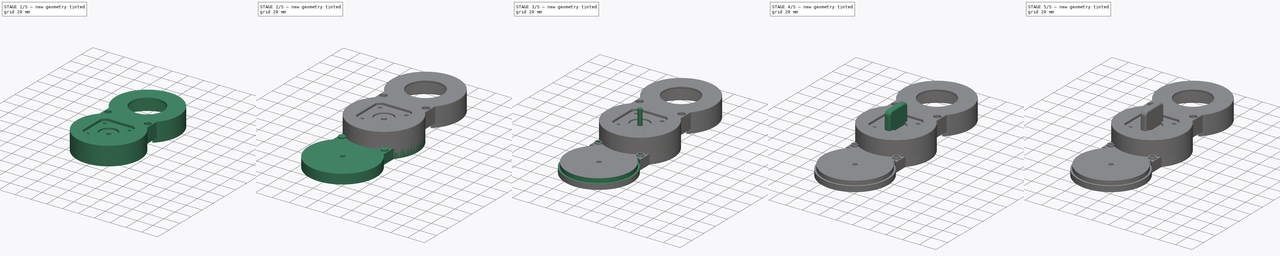
[diagram: build sequence overview — one tinted view per stage of 5, left to right]
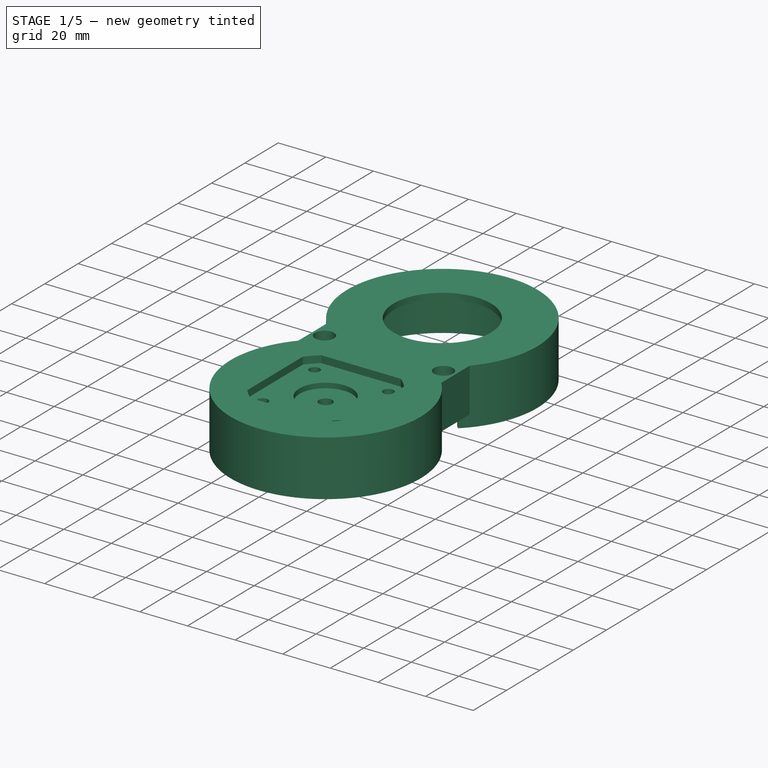
[diagram: stage 1 of 5 — iso view after this stage's code; geometry added in this stage tinted green]
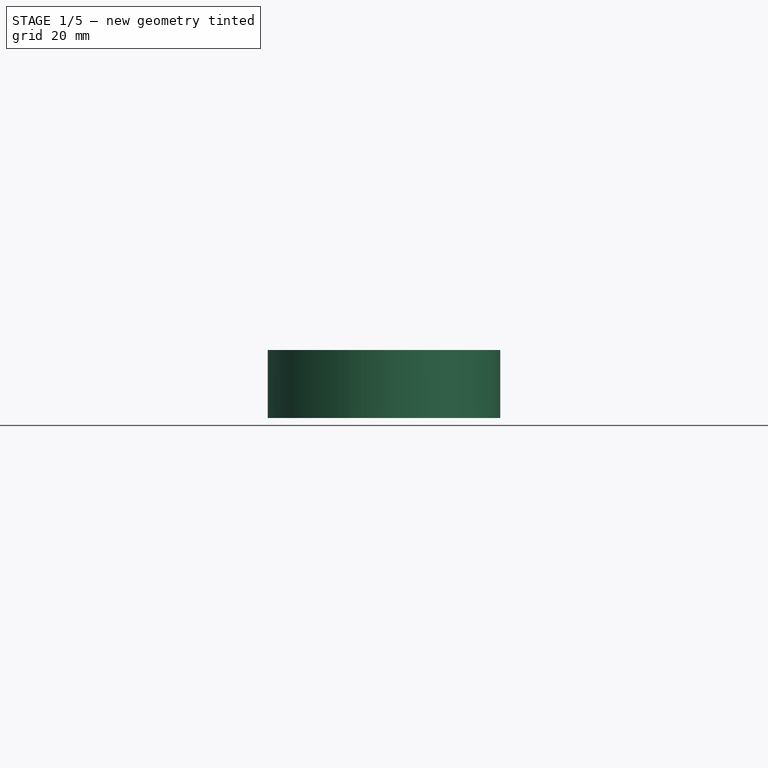
[diagram: stage 1 of 5 — front view after this stage's code; geometry added in this stage tinted green]
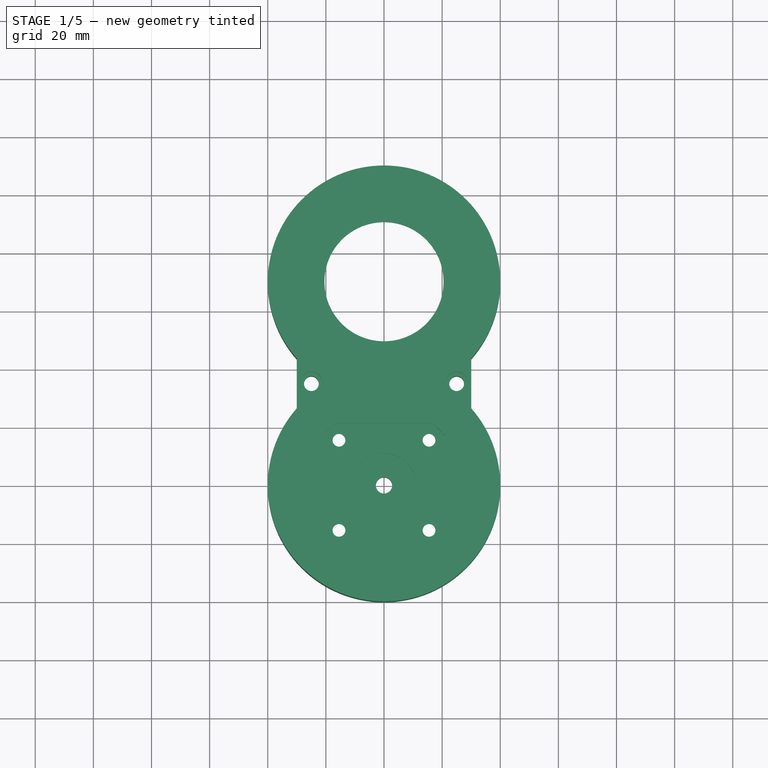
[diagram: stage 1 of 5 — top view after this stage's code; geometry added in this stage tinted green]
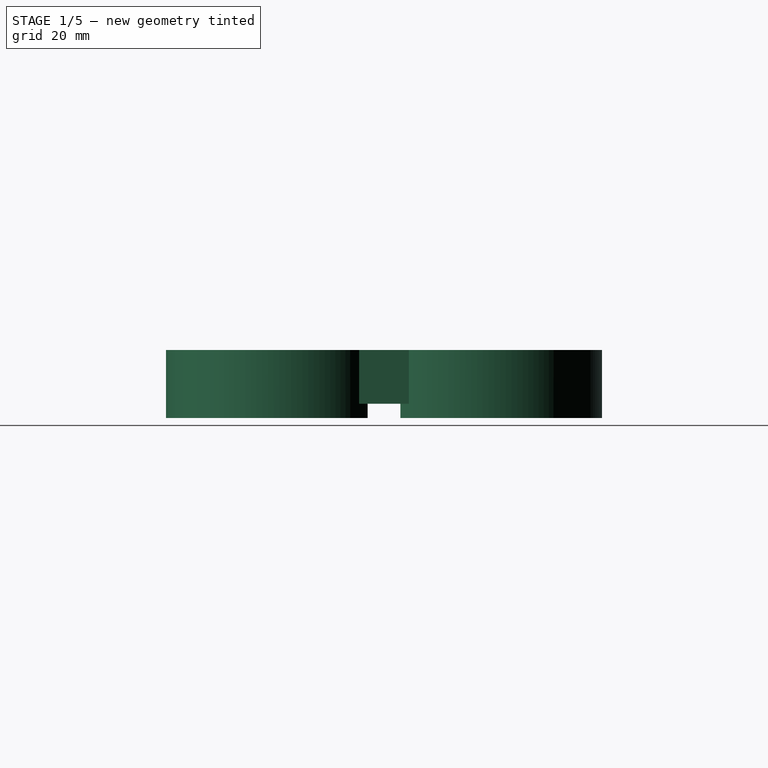
[diagram: stage 1 of 5 — right view after this stage's code; geometry added in this stage tinted green]
FCSTD DOCUMENT  (FreeCAD 0.19R24366 (Git))
Label: door_opener-005
License: CreativeCommons Attribution-NonCommercial-ShareAlike
LicenseURL: http://creativecommons.org/licenses/by-nc-sa/4.0/
objects: Sketcher::SketchObject×30, PartDesign::Pocket×15, PartDesign::Pad×8, PartDesign::Body×6, PartDesign::Chamfer×5, PartDesign::Revolution×5, Part::Cylinder×4, Part::Box×2, PartDesign::FeatureBase×2, PartDesign::Groove×2, Part::MultiFuse×1, Part::Cut×1, Part::FeaturePython×1, PartDesign::Fillet×1
note: 119 computed .brp shape members not serialized (recipe doc carries the construction recipe); baked Part::Feature solids carry a one-line shape summary decoded from their .brp

FEATURE [Sketcher::SketchObject] Sketch020  label="stepper holder"
  FullyConstrained = true
  MapMode = 5
  Placement = pos=(0,0,0) rot=(0.57735,0.57735,0.57735;2.0944rad)
  Support = -> [YZ_Plane012]
  sketch-geometry (13):
    g0: LineSegment StartX=12.5 StartY=23.25 StartZ=0 EndX=13.0731 EndY=20 EndZ=0
    g1: LineSegment StartX=13.0731 StartY=20 StartZ=0 EndX=28.6775 EndY=20 EndZ=0
    g2: LineSegment StartX=28.6775 StartY=20 StartZ=0 EndX=30 EndY=27.5 EndZ=0
    g3: LineSegment StartX=30 StartY=27.5 StartZ=0 EndX=11.05 EndY=27.5 EndZ=0
    g4: LineSegment StartX=12.5 StartY=23.25 StartZ=0 EndX=5.5 EndY=23.25 EndZ=0
    g5: LineSegment StartX=5.5 StartY=23.25 StartZ=0 EndX=5.5 EndY=23 EndZ=0
    g6: LineSegment StartX=5.5 StartY=23 StartZ=0 EndX=3.95 EndY=23 EndZ=0
    g7: LineSegment StartX=3.95 StartY=23 StartZ=0 EndX=3.95 EndY=16.4 EndZ=0
    g8: LineSegment StartX=3.45 StartY=15.9 StartZ=0 EndX=2.8 EndY=15.9 EndZ=0
    g9: LineSegment StartX=3.95 StartY=16.4 StartZ=0 EndX=3.45 EndY=15.9 EndZ=0
    g10: LineSegment StartX=2.8 StartY=15.9 StartZ=0 EndX=2.8 EndY=24.9 EndZ=0
    g11: LineSegment StartX=2.8 StartY=24.9 StartZ=0 EndX=11.05 EndY=24.9 EndZ=0
    g12: LineSegment StartX=11.05 StartY=24.9 StartZ=0 EndX=11.05 EndY=27.5 EndZ=0
  constraints (39):
    c: Coincident(g1,g0)
    c: Horizontal(g1)
    c: Coincident(g2,g1)
    c: DistanceX(g0) = 12.5
    c: Angle(g1,g0) = 1.74533
    c: Angle(g2,g1) = 1.74533
    c: Horizontal(g3)
    c: Coincident(g2,g3)
    c: DistanceY(g2) = 27.5
    c: DistanceY(g0,g3) = 4.25
    c: DistanceY(g1) = 20
    c: Coincident(g4,g0)
    c: Horizontal(g4)
    c: Coincident(g5,g4)
    c: Coincident(g6,g5)
    c: Horizontal(g6)
    c: Coincident(g7,g6)
    c: Vertical(g7)
    c: Horizontal(g8)
    c: DistanceX(g4) = 5.5
    c: Vertical(g5)
    c: DistanceY(g5) = 23
    c: DistanceX(g6) = 3.95
    c: Coincident(g9,g7)
    c: Coincident(g9,g8)
    c: DistanceX(g8) = 2.8
    c: Angle(g7,g9) = 2.35619
    c: DistanceX(g8,g7) = 0.5
    c: Coincident(g10,g8)
    c: Vertical(g10)
    c: Coincident(g11,g10)
    c: Horizontal(g11)
    c: Vertical(g12)
    c: Coincident(g3,g12)
    c: Coincident(g12,g11)
    c: DistanceX(g2) = 30
    c: DistanceX(g3) = 11.05
    c: DistanceY(g11) = 24.9
    c: DistanceY(g10,g10) = 9
FEATURE [Sketcher::SketchObject] Sketch021  label="cover huil"
  AttachmentOffset = pos=(0,0,11.5) rot=(0,0,1;0rad)
  FullyConstrained = false
  MapMode = 5
  Placement = pos=(0,0,11.5) rot=(0,0,1;0rad)
  Support = -> [XY_Plane010]
  sketch-geometry (11):
    g0: ArcOfCircle CenterX=1.4e-15 CenterY=70 CenterZ=0 NormalX=0 NormalY=0 NormalZ=1 AngleXU=0 Radius=40 StartAngle=5.56045 EndAngle=10.1475
    g1: ArcOfCircle CenterX=0 CenterY=0 CenterZ=0 NormalX=0 NormalY=0 NormalZ=1 AngleXU=0 Radius=40 StartAngle=2.41886 EndAngle=7.00592
    g2: ArcOfCircle CenterX=1.4e-15 CenterY=70 CenterZ=0 NormalX=0 NormalY=0 NormalZ=1 AngleXU=0 Radius=38 StartAngle=5.2667 EndAngle=10.4413
    g3: ArcOfCircle CenterX=0 CenterY=0 CenterZ=0 NormalX=0 NormalY=0 NormalZ=1 AngleXU=0 Radius=38 StartAngle=2.12511 EndAngle=7.29967
    g4: LineSegment StartX=30 StartY=43.5425 StartZ=0 EndX=30 EndY=26.4575 EndZ=0
    g5: LineSegment StartX=-30 StartY=43.5425 StartZ=0 EndX=-30 EndY=26.4575 EndZ=0
    g6: LineSegment StartX=-20.0016 StartY=37.69 StartZ=0 EndX=-20.0016 EndY=32.31 EndZ=0
    g7: LineSegment StartX=20.0016 StartY=37.69 StartZ=0 EndX=20.0016 EndY=32.31 EndZ=0
    g8: LineSegment StartX=-40 StartY=35 StartZ=0 EndX=40 EndY=35 EndZ=0
    g9: Circle CenterX=-25 CenterY=35 CenterZ=0 NormalX=0 NormalY=0 NormalZ=1 AngleXU=0 Radius=2.55
    g10: Circle CenterX=25 CenterY=35 CenterZ=0 NormalX=0 NormalY=0 NormalZ=1 AngleXU=0 Radius=2.55
  constraints (32):
    c: Coincident(g1,g-1)
    c: Coincident(g2,g0)
    c: Coincident(g3,g1)
    c: Radius(g2) = 38
    c: Radius(g0) = 40
    c: Radius(g3) = 38
    c: Radius(g1) = 40
    c: DistanceY(g0) = 70
    c: Vertical(g4)
    c: Vertical(g5)
    c: Vertical(g6)
    c: DistanceY(g8) = 35
    c: Symmetric(g8,g8,g-2)
    c: DistanceX(g8,g8) = 80
    c: Coincident(g0,g4)
    c: Coincident(g4,g1)
    c: Coincident(g7,g2)
    c: Coincident(g7,g3)
    c: Coincident(g6,g2)
    c: Coincident(g6,g3)
    c: Coincident(g5,g1)
    c: Coincident(g5,g0)
    c: Symmetric(g2,g2,g-2)
    c: DistanceY(g2) = 37.69
    c: Equal(g7,g6)
    c: Symmetric(g0,g0,g-2)
    c: Equal(g5,g4)
    c: PointOnObject(g9,g8)
    c: Radius(g9) = 2.55
    c: Symmetric(g10,g9,g-2)
    c: DistanceX(g9,g10) = 50
    c: Equal(g9,g10)
FEATURE [PartDesign::Pad] Pad
  Direction = (1,1,1)
  Length = 17
  Length2 = 100
  Profile = -> Sketch021
  Refine = true
  Type = 0
FEATURE [Sketcher::SketchObject] Sketch022  label="cover top"
  AttachmentOffset = pos=(0,0,27.5) rot=(0,0,1;0rad)
  FullyConstrained = false
  MapMode = 5
  Placement = pos=(0,0,27.5) rot=(0,0,1;0rad)
  Support = -> [XY_Plane010]
  sketch-geometry (7):
    g0: ArcOfCircle CenterX=0 CenterY=70 CenterZ=0 NormalX=0 NormalY=0 NormalZ=1 AngleXU=0 Radius=40 StartAngle=5.56045 EndAngle=10.1475
    g1: ArcOfCircle CenterX=0 CenterY=0 CenterZ=0 NormalX=0 NormalY=0 NormalZ=1 AngleXU=0 Radius=40 StartAngle=2.41886 EndAngle=7.00592
    g2: LineSegment StartX=30 StartY=43.5425 StartZ=0 EndX=30 EndY=26.4575 EndZ=0
    g3: LineSegment StartX=-30 StartY=43.5425 StartZ=0 EndX=-30 EndY=26.4575 EndZ=0
    g4: Circle CenterX=-25 CenterY=35 CenterZ=0 NormalX=0 NormalY=0 NormalZ=1 AngleXU=0 Radius=2.55
    g5: Circle CenterX=25 CenterY=35 CenterZ=0 NormalX=0 NormalY=0 NormalZ=1 AngleXU=0 Radius=2.55
    g6: Circle CenterX=0 CenterY=70 CenterZ=0 NormalX=0 NormalY=0 NormalZ=1 AngleXU=0 Radius=20.5
  constraints (17):
    c: Coincident(g1,g-1)
    c: Radius(g0) = 40
    c: Radius(g1) = 40
    c: DistanceY(g0) = 70
    c: Vertical(g2)
    c: Vertical(g3)
    c: Coincident(g0,g2)
    c: Coincident(g2,g1)
    c: Coincident(g3,g1)
    c: Coincident(g3,g0)
    c: Symmetric(g0,g0,g-2)
    c: Radius(g4) = 2.55
    c: Symmetric(g5,g4,g-2)
    c: DistanceX(g4,g5) = 50
    c: Equal(g4,g5)
    c: Coincident(g6,g0)
    c: Radius(g6) = 20.5
FEATURE [PartDesign::Pad] Pad004  label="cover top"
  BaseFeature = -> Pad
  Direction = (1,1,1)
  Length = 2.5
  Length2 = 100
  Profile = -> Sketch022
  Refine = true
  Type = 0
FEATURE [PartDesign::Revolution] Revolution005  label="stepper holder"
  Angle = 360
  Axis = (-2e-16,3e-16,1)
  Base = (0,0,0)
  BaseFeature = -> Pad004
  Profile = -> Sketch020
  ReferenceAxis = -> Sketch020 [V_Axis]
  Refine = true
  Reversed = true
FEATURE [Sketcher::SketchObject] Sketch023  label="main stepper cut"
  AttachmentOffset = pos=(0,0,30) rot=(0,0,1;0rad)
  FullyConstrained = true
  MapMode = 5
  Placement = pos=(0,0,30) rot=(0,0,1;0rad)
  Support = -> [XY_Plane010]
  sketch-geometry (8):
    g0: ArcOfCircle CenterX=-1.04e-14 CenterY=-7.3e-15 CenterZ=0 NormalX=0 NormalY=0 NormalZ=1 AngleXU=0 Radius=26.9991 StartAngle=5.37715 EndAngle=5.61842
    g1: LineSegment StartX=-16.655 StartY=21.25 StartZ=0 EndX=16.655 EndY=21.25 EndZ=0
    g2: LineSegment StartX=21.25 StartY=16.655 StartZ=0 EndX=21.25 EndY=-16.655 EndZ=0
    g3: LineSegment StartX=16.655 StartY=-21.25 StartZ=0 EndX=-16.655 EndY=-21.25 EndZ=0
    g4: LineSegment StartX=-21.25 StartY=-16.655 StartZ=0 EndX=-21.25 EndY=16.655 EndZ=0
    g5: ArcOfCircle CenterX=-1.04e-14 CenterY=-7.3e-15 CenterZ=0 NormalX=0 NormalY=0 NormalZ=1 AngleXU=0 Radius=26.9991 StartAngle=3.80636 EndAngle=4.04763
    g6: ArcOfCircle CenterX=-1.04e-14 CenterY=-7.3e-15 CenterZ=0 NormalX=0 NormalY=0 NormalZ=1 AngleXU=0 Radius=26.9991 StartAngle=2.23556 EndAngle=2.47683
    g7: ArcOfCircle CenterX=-1.04e-14 CenterY=-7.3e-15 CenterZ=0 NormalX=0 NormalY=0 NormalZ=1 AngleXU=0 Radius=26.9991 StartAngle=0.664763 EndAngle=0.906034
  constraints (22):
    c: Horizontal(g3)
    c: Vertical(g4)
    c: Coincident(g0,g3)
    c: Coincident(g3,g5)
    c: Equal(g0,g5)
    c: Coincident(g5,g4)
    c: Coincident(g0,g5)
    c: Coincident(g4,g6)
    c: Equal(g0,g6)
    c: Coincident(g6,g1)
    c: Coincident(g0,g6)
    c: Coincident(g1,g7)
    c: Coincident(g0,g2)
    c: Coincident(g7,g2)
    c: Coincident(g0,g7)
    c: DistanceY(g2,g2) = 33.31
    c: Symmetric(g2,g4,g-2)
    c: Symmetric(g1,g1,g-2)
    c: Symmetric(g1,g0,g-1)
    c: DistanceX(g1,g1) = 33.31
    c: DistanceY(g4,g4) = 33.31
    c: DistanceX(g0,g0) = 21.25
FEATURE [PartDesign::Pocket] Pocket006  label="stepper cut"
  BaseFeature = -> Revolution005
  Length = 3
  Length2 = 0
  Profile = -> Sketch023
  Refine = true
  Type = 0
FEATURE [Sketcher::SketchObject] Sketch024  label="stepper screw cuts"
  AttachmentOffset = pos=(0,0,17) rot=(0,0,1;0rad)
  FullyConstrained = true
  MapMode = 5
  Placement = pos=(0,0,17) rot=(0,0,1;0rad)
  Support = -> [XY_Plane010]
  sketch-geometry (4):
    g0: Circle CenterX=15.5 CenterY=15.5 CenterZ=0 NormalX=0 NormalY=0 NormalZ=1 AngleXU=0 Radius=2.2
    g1: Circle CenterX=15.5 CenterY=-15.5 CenterZ=0 NormalX=0 NormalY=0 NormalZ=1 AngleXU=0 Radius=2.2
    g2: Circle CenterX=-15.5 CenterY=-15.5 CenterZ=0 NormalX=0 NormalY=0 NormalZ=1 AngleXU=0 Radius=2.2
    g3: Circle CenterX=-15.5 CenterY=15.5 CenterZ=0 NormalX=0 NormalY=0 NormalZ=1 AngleXU=0 Radius=2.2
  constraints (9):
    c: Radius(g3) = 2.2
    c: Equal(g3,g0)
    c: Equal(g3,g1)
    c: Equal(g3,g2)
    c: DistanceX(g2,g1) = 31
    c: DistanceY(g1,g0) = 31
    c: Symmetric(g1,g2,g-2)
    c: Symmetric(g0,g1,g-1)
    c: Symmetric(g0,g3,g-2)
FEATURE [PartDesign::Pocket] Pocket007  label="screw holes"
  BaseFeature = -> Pocket006
  Length = 5
  Length2 = 100
  Profile = -> Sketch024
  Refine = true
  Reversed = true
  Type = 1
FEATURE [Sketcher::SketchObject] Sketch025  label="stepper screw head cuts"
  AttachmentOffset = pos=(0,0,20) rot=(0,0,1;0rad)
  FullyConstrained = true
  MapMode = 5
  Placement = pos=(0,0,20) rot=(0,0,1;0rad)
  Support = -> [XY_Plane010]
  sketch-geometry (4):
    g0: Circle CenterX=15.5 CenterY=15.5 CenterZ=0 NormalX=0 NormalY=0 NormalZ=1 AngleXU=0 Radius=3.2
    g1: Circle CenterX=15.5 CenterY=-15.5 CenterZ=0 NormalX=0 NormalY=0 NormalZ=1 AngleXU=0 Radius=3.2
    g2: Circle CenterX=-15.5 CenterY=-15.5 CenterZ=0 NormalX=0 NormalY=0 NormalZ=1 AngleXU=0 Radius=3.2
    g3: Circle CenterX=-15.5 CenterY=15.5 CenterZ=0 NormalX=0 NormalY=0 NormalZ=1 AngleXU=0 Radius=3.2
  constraints (9):
    c: Radius(g3) = 3.2
    c: Equal(g3,g0)
    c: Equal(g3,g1)
    c: Equal(g3,g2)
    c: DistanceX(g2,g1) = 31
    c: DistanceY(g1,g0) = 31
    c: Symmetric(g1,g2,g-2)
    c: Symmetric(g0,g1,g-1)
    c: Symmetric(g0,g3,g-2)
FEATURE [PartDesign::Pocket] Pocket008  label="stepper screw heads"
  BaseFeature = -> Pocket007
  Length = 4
  Length2 = 100
  Profile = -> Sketch025
  Refine = true
  Reversed = true
  Type = 0
FEATURE [Sketcher::SketchObject] Sketch026  label="cover mount screw head cuts"
  FullyConstrained = true
  MapMode = 5
  Placement = pos=(0,0,30) rot=(0,0,1;0rad)
  Support = -> [Pocket008]
  sketch-geometry (2):
    g0: Circle CenterX=25 CenterY=35 CenterZ=0 NormalX=0 NormalY=0 NormalZ=1 AngleXU=0 Radius=4
    g1: Circle CenterX=-25 CenterY=35 CenterZ=0 NormalX=0 NormalY=0 NormalZ=1 AngleXU=0 Radius=4
  constraints (5):
    c: DistanceX(g0) = 25
    c: Radius(g0) = 4
    c: Equal(g1,g0)
    c: Symmetric(g1,g0,g-2)
    c: DistanceY(g0) = 35
FEATURE [PartDesign::Pocket] Pocket009
  BaseFeature = -> Pocket008
  Length = 4
  Length2 = 100
  Profile = -> Sketch026
  Refine = true
  Type = 0
FEATURE [Sketcher::SketchObject] Sketch027  label="index pin sketch"
  FullyConstrained = true
  MapMode = 5
  Placement = pos=(0,0,11.5) rot=(1,0,0;3.14159rad)
  Support = -> [Pocket009]
  sketch-geometry (2):
    g0: Circle CenterX=-25 CenterY=-35 CenterZ=0 NormalX=0 NormalY=0 NormalZ=1 AngleXU=0 Radius=4
    g1: Circle CenterX=25 CenterY=-35 CenterZ=0 NormalX=0 NormalY=0 NormalZ=1 AngleXU=0 Radius=4
  constraints (5):
    c: DistanceY(g0,g-1) = 35
    c: DistanceX(g0,g-1) = 25
    c: Symmetric(g1,g0,g-2)
    c: Equal(g1,g0)
    c: Radius(g0) = 4
FEATURE [PartDesign::Pocket] Pocket010  label="index pin holes"
  BaseFeature = -> Pocket009
  Length = 2
  Length2 = 100
  Profile = -> Sketch027
  Refine = true
  Type = 0
FEATURE [Sketcher::SketchObject] Sketch031  label="index ring main block"
  AttachmentOffset = pos=(0,0,6.5) rot=(0,0,1;0rad)
  FullyConstrained = true
  MapMode = 5
  Placement = pos=(0,0,6.5) rot=(0,0,1;0rad)
  Support = -> [XY_Plane001]
  sketch-geometry (12):
    g0: ArcOfCircle CenterX=0 CenterY=0 CenterZ=0 NormalX=0 NormalY=0 NormalZ=1 AngleXU=0 Radius=40.1 StartAngle=5.45415 EndAngle=10.2538
    g1: ArcOfCircle CenterX=0 CenterY=0 CenterZ=0 NormalX=0 NormalY=0 NormalZ=1 AngleXU=0 Radius=38 StartAngle=5.45415 EndAngle=10.2538
    g2: ArcOfCircle CenterX=0 CenterY=-70 CenterZ=0 NormalX=0 NormalY=0 NormalZ=1 AngleXU=0 Radius=40.1 StartAngle=2.31256 EndAngle=7.11222
    g3: ArcOfCircle CenterX=0 CenterY=-70 CenterZ=0 NormalX=0 NormalY=0 NormalZ=1 AngleXU=0 Radius=38 StartAngle=2.31256 EndAngle=7.11222
    g4: LineSegment StartX=0 StartY=0 StartZ=0 EndX=30.4016 EndY=-33.1775 EndZ=0
    g5: LineSegment StartX=0 StartY=0 StartZ=0 EndX=-30.4016 EndY=-33.1775 EndZ=0
    g6: LineSegment StartX=0 StartY=-70 StartZ=0 EndX=30.4016 EndY=-36.8225 EndZ=0
    g7: LineSegment StartX=0 StartY=-70 StartZ=0 EndX=-30.4016 EndY=-36.8225 EndZ=0
    g8: LineSegment StartX=-25.6724 StartY=-28.0165 StartZ=0 EndX=-27.0912 EndY=-29.5648 EndZ=0
    g9: LineSegment StartX=25.6724 StartY=-28.0165 StartZ=0 EndX=27.0912 EndY=-29.5648 EndZ=0
    g10: LineSegment StartX=-27.0912 StartY=-40.4352 StartZ=0 EndX=-25.6724 EndY=-41.9835 EndZ=0
    g11: LineSegment StartX=27.0912 StartY=-40.4352 StartZ=0 EndX=25.6724 EndY=-41.9835 EndZ=0
  constraints (35):
    c: Coincident(g0,g-1)
    c: Coincident(g1,g0)
    c: Radius(g3) = 38
    c: Radius(g2) = 40.1
    c: Radius(g1) = 38
    c: Radius(g0) = 40.1
    c: Coincident(g4,g0)
    c: Coincident(g5,g0)
    c: Symmetric(g5,g4,g-2)
    c: Distance(g4) = 45
    c: Angle(g5,g4) = 1.48353
    c: Coincident(g6,g2)
    c: Coincident(g7,g2)
    c: Symmetric(g6,g7,g-2)
    c: Coincident(g2,g3)
    c: DistanceX(g-1,g2) = 0
    c: DistanceY(g2,g0) = 70
    c: Angle(g6,g7) = 1.48353
    c: Distance(g6) = 45
    c: PointOnObject(g3,g6)
    c: PointOnObject(g0,g4)
    c: PointOnObject(g1,g4)
    c: PointOnObject(g2,g6)
    c: PointOnObject(g1,g5)
    c: PointOnObject(g0,g5)
    c: PointOnObject(g3,g7)
    c: PointOnObject(g2,g7)
    c: Coincident(g8,g1)
    c: Coincident(g8,g0)
    c: Coincident(g9,g1)
    c: Coincident(g9,g0)
    c: Coincident(g10,g2)
    c: Coincident(g10,g3)
    c: Coincident(g11,g2)
    c: Coincident(g11,g3)
FEATURE [Sketcher::SketchObject] Sketch032  label="index ring cover"
  AttachmentOffset = pos=(0,70,11.5) rot=(0,0,1;0rad)
  FullyConstrained = true
  MapMode = 5
  Placement = pos=(0,70,11.5) rot=(0,0,1;0rad)
  Support = -> [XY_Plane010]
  sketch-geometry (12):
    g0: ArcOfCircle CenterX=0 CenterY=0 CenterZ=0 NormalX=0 NormalY=0 NormalZ=1 AngleXU=0 Radius=40 StartAngle=5.45852 EndAngle=10.2494
    g1: ArcOfCircle CenterX=0 CenterY=0 CenterZ=0 NormalX=0 NormalY=0 NormalZ=1 AngleXU=0 Radius=38 StartAngle=5.45852 EndAngle=10.2494
    g2: ArcOfCircle CenterX=0 CenterY=-70 CenterZ=0 NormalX=0 NormalY=0 NormalZ=1 AngleXU=0 Radius=40 StartAngle=2.31692 EndAngle=7.10785
    g3: ArcOfCircle CenterX=0 CenterY=-70 CenterZ=0 NormalX=0 NormalY=0 NormalZ=1 AngleXU=0 Radius=38 StartAngle=2.31692 EndAngle=7.10785
    g4: LineSegment StartX=0 StartY=0 StartZ=0 EndX=30.546 EndY=-33.0445 EndZ=0
    g5: LineSegment StartX=0 StartY=0 StartZ=0 EndX=-30.546 EndY=-33.0445 EndZ=0
    g6: LineSegment StartX=0 StartY=-70 StartZ=0 EndX=30.546 EndY=-36.9555 EndZ=0
    g7: LineSegment StartX=0 StartY=-70 StartZ=0 EndX=-30.546 EndY=-36.9555 EndZ=0
    g8: LineSegment StartX=-25.7944 StartY=-27.9043 StartZ=0 EndX=-27.152 EndY=-29.3729 EndZ=0
    g9: LineSegment StartX=25.7944 StartY=-27.9043 StartZ=0 EndX=27.152 EndY=-29.3729 EndZ=0
    g10: LineSegment StartX=-27.152 StartY=-40.6271 StartZ=0 EndX=-25.7944 EndY=-42.0957 EndZ=0
    g11: LineSegment StartX=27.152 StartY=-40.6271 StartZ=0 EndX=25.7944 EndY=-42.0957 EndZ=0
  constraints (35):
    c: Coincident(g0,g-1)
    c: Coincident(g1,g0)
    c: Radius(g3) = 38
    c: Radius(g2) = 40
    c: Radius(g1) = 38
    c: Radius(g0) = 40
    c: Coincident(g4,g0)
    c: Coincident(g5,g0)
    c: Symmetric(g5,g4,g-2)
    c: Distance(g4) = 45
    c: Angle(g5,g4) = 1.49226
    c: Coincident(g6,g2)
    c: Coincident(g7,g2)
    c: Symmetric(g6,g7,g-2)
    c: Coincident(g2,g3)
    c: DistanceX(g-1,g2) = 0
    c: DistanceY(g2,g0) = 70
    c: Angle(g6,g7) = 1.49226
    c: Distance(g6) = 45
    c: PointOnObject(g3,g6)
    c: PointOnObject(g0,g4)
    c: PointOnObject(g1,g4)
    c: PointOnObject(g2,g6)
    c: PointOnObject(g1,g5)
    c: PointOnObject(g0,g5)
    c: PointOnObject(g3,g7)
    c: PointOnObject(g2,g7)
    c: Coincident(g8,g1)
    c: Coincident(g8,g0)
    c: Coincident(g9,g1)
    c: Coincident(g9,g0)
    c: Coincident(g10,g2)
    c: Coincident(g10,g3)
    c: Coincident(g11,g2)
    c: Coincident(g11,g3)
FEATURE [PartDesign::Pad] Pad007  label="index ring cover"
  BaseFeature = -> Pocket010
  Direction = (1,1,1)
  Length = 4.9
  Length2 = 100
  Profile = -> Sketch032
  Refine = true
  Reversed = true
  Type = 0
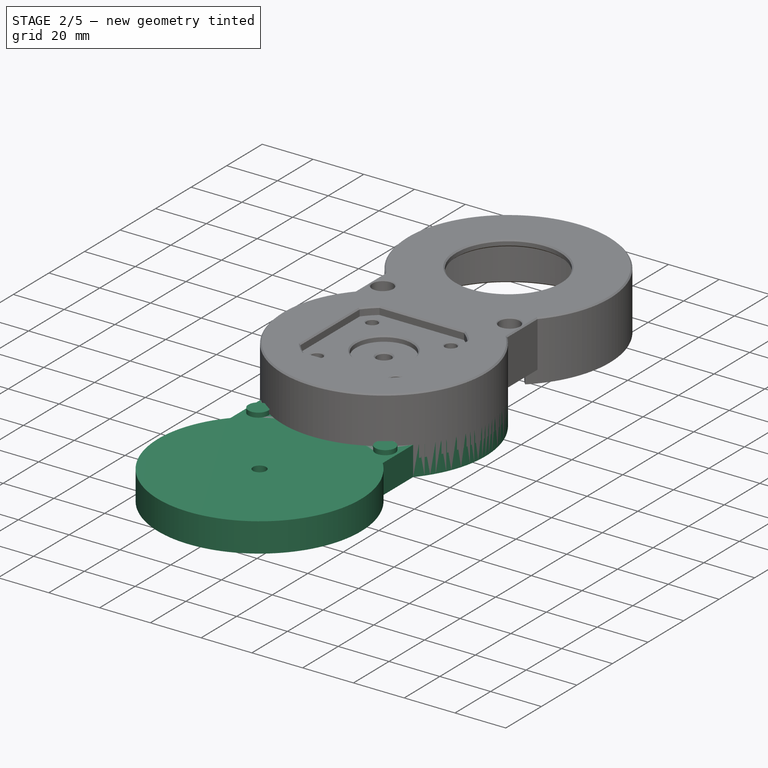
[diagram: stage 2 of 5 — iso view after this stage's code; geometry added in this stage tinted green]
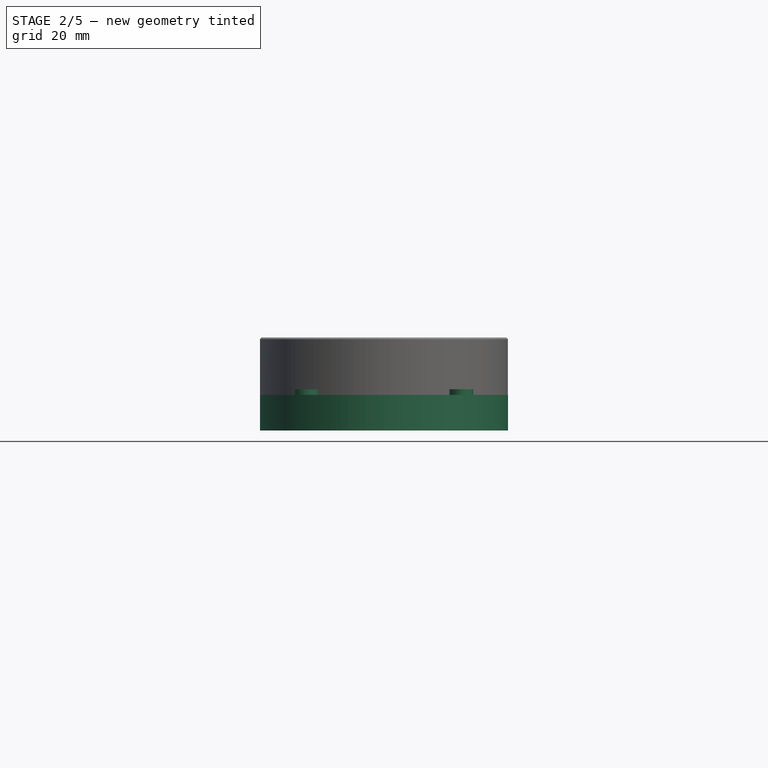
[diagram: stage 2 of 5 — front view after this stage's code; geometry added in this stage tinted green]
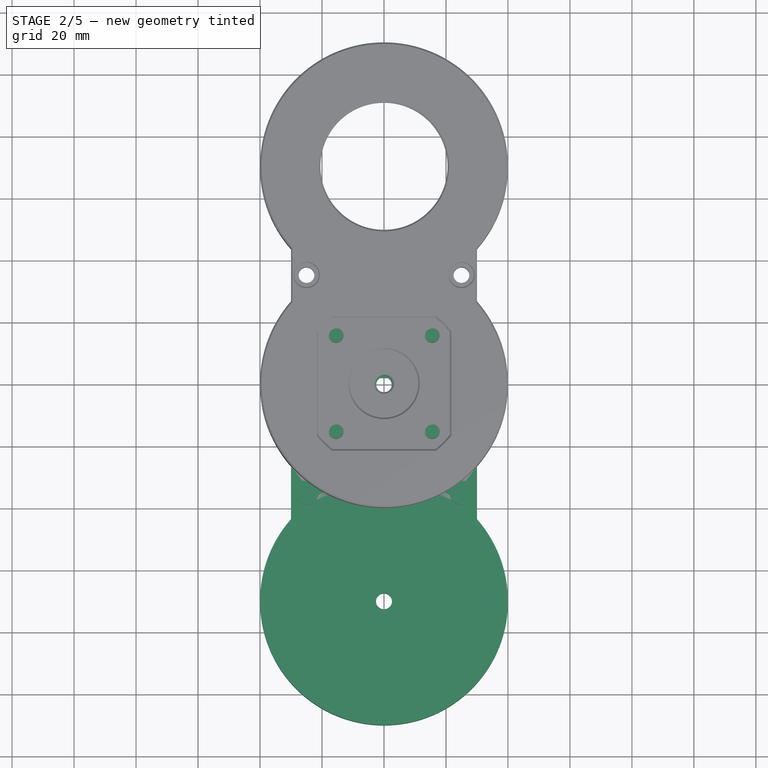
[diagram: stage 2 of 5 — top view after this stage's code; geometry added in this stage tinted green]
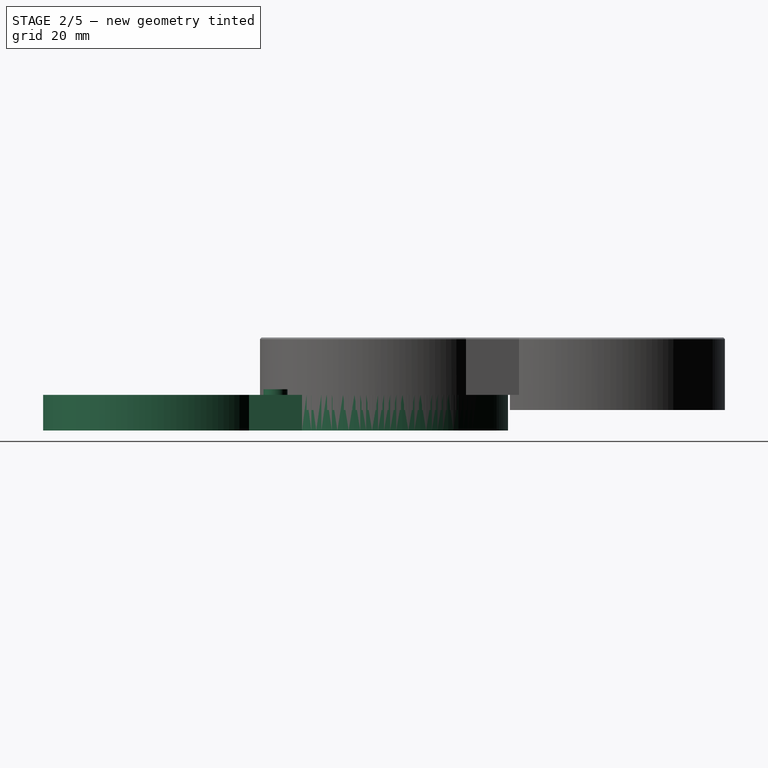
[diagram: stage 2 of 5 — right view after this stage's code; geometry added in this stage tinted green]
FEATURE [Sketcher::SketchObject] Sketch  label="top body profile sketch"
  FullyConstrained = true
  MapMode = 5
  Placement = pos=(0,0,0) rot=(1,0,0;1.5708rad)
  sketch-geometry (15):
    g0: LineSegment StartX=13.5 StartY=21 StartZ=0 EndX=13.5 EndY=23.5 EndZ=0
    g1: LineSegment StartX=13.5 StartY=23.5 StartZ=0 EndX=14.3 EndY=23.5 EndZ=0
    g2: LineSegment StartX=14.3 StartY=23.5 StartZ=0 EndX=14.8 EndY=23 EndZ=0
    g3: LineSegment StartX=14.8 StartY=23 StartZ=0 EndX=14.8 EndY=16.5 EndZ=0
    g4: LineSegment StartX=14.8 StartY=16.5 StartZ=0 EndX=16.75 EndY=16.5 EndZ=0
    g5: LineSegment StartX=16.75 StartY=16.5 StartZ=0 EndX=16.75 EndY=16 EndZ=0
    g6: LineSegment StartX=16.75 StartY=16 StartZ=0 EndX=30 EndY=16 EndZ=0
    g7: LineSegment StartX=30 StartY=16 StartZ=0 EndX=30 EndY=11.5 EndZ=0
    g8: LineSegment StartX=30 StartY=11.5 StartZ=0 EndX=40 EndY=11.5 EndZ=0
    g9: LineSegment StartX=40 StartY=11.5 StartZ=0 EndX=40 EndY=0 EndZ=0
    g10: LineSegment StartX=40 StartY=0 StartZ=0 EndX=10 EndY=0 EndZ=0
    g11: LineSegment StartX=10 StartY=0 StartZ=0 EndX=9 EndY=1 EndZ=0
    g12: LineSegment StartX=9 StartY=1 StartZ=0 EndX=9 EndY=20.5 EndZ=0
    g13: LineSegment StartX=9 StartY=20.5 StartZ=0 EndX=9.5 EndY=21 EndZ=0
    g14: LineSegment StartX=9.5 StartY=21 StartZ=0 EndX=13.5 EndY=21 EndZ=0
  constraints (45):
    c: Vertical(g0)
    c: Coincident(g0,g1)
    c: Horizontal(g1)
    c: Coincident(g1,g2)
    c: Coincident(g2,g3)
    c: Vertical(g3)
    c: Coincident(g3,g4)
    c: Horizontal(g4)
    c: Coincident(g4,g5)
    c: Coincident(g5,g6)
    c: Horizontal(g6)
    c: Coincident(g6,g7)
    c: Vertical(g7)
    c: Coincident(g7,g8)
    c: Horizontal(g8)
    c: PointOnObject(g9,g-1)
    c: Vertical(g9)
    c: Coincident(g9,g10)
    c: Coincident(g10,g11)
    c: Vertical(g12)
    c: Coincident(g12,g13)
    c: Coincident(g13,g14)
    c: Coincident(g14,g0)
    c: Horizontal(g14)
    c: Horizontal(g10)
    c: Coincident(g11,g12)
    c: Vertical(g5)
    c: Angle(g1,g2) = 2.35619
    c: Angle(g13,g14) = 2.35619
    c: Angle(g10,g11) = 2.35619
    c: DistanceX(g11) = 9
    c: DistanceX(g9) = 40
    c: DistanceY(g9,g8) = 11.5
    c: DistanceX(g6) = 30
    c: DistanceY(g5,g5) = 0.5
    c: DistanceX(g4) = 16.75
    c: DistanceX(g3) = 14.8
    c: DistanceX(g1,g2) = 0.5
    c: DistanceX(g12,g13) = 0.5
    c: DistanceX(g0) = 13.5
    c: DistanceY(g9,g13) = 21
    c: DistanceX(g11,g11) = 1
    c: DistanceY(g1) = 23.5
    c: DistanceY(g6) = 16
    c: Coincident(g9,g8)
FEATURE [Part::FeaturePython] InvoluteGear001  label="InvoluteGear"  # WARN: FeaturePython — macro-defined, semantics opaque (R4)
  backlash = 0
  beta = 0
  clearance = 0.25
  double_helix = false
  dw = 70
  head = 0
  height = 15
  module = 2
  numpoints = 10
  pressure_angle = 20
  reversed_backlash = false
  shift = 0
  simple = false
  teeth = 35
  undercut = true
FEATURE [PartDesign::Body] Body004  label="Nema Stepper Motor 17HS08-1004S"
  Group = -> [Sketch012,Revolution003,Sketch013,Pocket003,Sketch014,Pocket004,Sketch015,Pocket005,Sketch004,Pad003]
  Origin = -> Origin006
  Placement = pos=(0,-70,47.5) rot=(0,1,0;3.14159rad)
  Tip = -> Pad003
FEATURE [PartDesign::FeatureBase] BaseFeature001
  BaseFeature = -> InvoluteGear001
FEATURE [PartDesign::Chamfer] Chamfer004  label="driver gear"
  Angle = 45
  Base = -> BaseFeature001 [Face211,Face212]
  BaseFeature = -> BaseFeature001
  ChamferType = 0
  FlipDirection = false
  Refine = true
  Size = 0.75
  Size2 = 1
  SupportTransform = false
FEATURE [PartDesign::Body] Body006  label="bearing small"
  Group = -> [Sketch017,Revolution004]
  Origin = -> Origin009
  Placement = pos=(0,-70,0) rot=(0,0,1;0rad)
  Tip = -> Revolution004
FEATURE [Sketcher::SketchObject] Sketch018  label="driver gear cut sketch"
  FullyConstrained = true
  MapMode = 5
  Placement = pos=(0,0,0) rot=(0.57735,0.57735,0.57735;2.0944rad)
  Support = -> [YZ_Plane008]
  sketch-geometry (15):
    g0: LineSegment StartX=11.1943 StartY=11 StartZ=0 EndX=12 EndY=11 EndZ=0
    g1: LineSegment StartX=31 StartY=15 StartZ=0 EndX=0 EndY=15 EndZ=0
    g2: LineSegment StartX=0 StartY=15 StartZ=0 EndX=0 EndY=0 EndZ=0
    g3: LineSegment StartX=0 StartY=0 StartZ=0 EndX=2.5 EndY=0 EndZ=0
    g4: LineSegment StartX=2.5 StartY=3.25 StartZ=0 EndX=2.5 EndY=0 EndZ=0
    g5: LineSegment StartX=2.75 StartY=3.5 StartZ=0 EndX=2.5 EndY=3.25 EndZ=0
    g6: LineSegment StartX=11.05 StartY=4 StartZ=0 EndX=11.05 EndY=10.75 EndZ=0
    g7: LineSegment StartX=11.1943 StartY=11 StartZ=0 EndX=11.05 EndY=10.75 EndZ=0
    g8: LineSegment StartX=29.2657 StartY=7.5 StartZ=0 EndX=12.6171 EndY=7.5 EndZ=0
    g9: LineSegment StartX=12.6171 StartY=7.5 StartZ=0 EndX=12 EndY=11 EndZ=0
    g10: LineSegment StartX=29.2657 StartY=7.5 StartZ=0 EndX=30.5 EndY=14.5 EndZ=0
    g11: LineSegment StartX=30.5 StartY=14.5 StartZ=0 EndX=31 EndY=15 EndZ=0
    g12: LineSegment StartX=11.05 StartY=4 StartZ=0 EndX=9 EndY=4 EndZ=0
    g13: LineSegment StartX=9 StartY=4 StartZ=0 EndX=9 EndY=3.5 EndZ=0
    g14: LineSegment StartX=9 StartY=3.5 StartZ=0 EndX=2.75 EndY=3.5 EndZ=0
  constraints (44):
    c: Horizontal(g0)
    c: Horizontal(g1)
    c: Coincident(g1,g2)
    c: Vertical(g2)
    c: Coincident(g2,g3)
    c: Coincident(g4,g3)
    c: Vertical(g4)
    c: Coincident(g2,g-1)
    c: DistanceX(g6) = 11.05
    c: Horizontal(g3)
    c: DistanceX(g2,g3) = 2.5
    c: Coincident(g5,g4)
    c: Angle(g4,g5) = 2.35619
    c: DistanceY(g6) = 4
    c: DistanceY(g4,g5) = 0.25
    c: DistanceY(g0) = 11
    c: Vertical(g6)
    c: Coincident(g7,g0)
    c: Coincident(g7,g6)
    c: Angle(g7,g0) = 2.0944
    c: DistanceY(g6,g0) = 0.25
    c: Horizontal(g8)
    c: Coincident(g8,g9)
    c: Coincident(g9,g0)
    c: Angle(g0,g9) = 1.74533
    c: Coincident(g8,g10)
    c: Coincident(g10,g11)
    c: Coincident(g1,g11)
    c: Angle(g10,g8) = 1.74533
    c: Angle(g1,g11) = 0.785398
    c: DistanceY(g1) = 15
    c: DistanceX(g1) = 31
    c: DistanceX(g10,g1) = 0.5
    c: DistanceY(g8) = 7.5
    c: DistanceX(g0) = 12
    c: Coincident(g12,g6)
    c: Coincident(g13,g12)
    c: Coincident(g14,g13)
    c: Coincident(g14,g5)
    c: Vertical(g13)
    c: Horizontal(g14)
    c: Horizontal(g12)
    c: DistanceY(g13,g13) = 0.5
    c: DistanceX(g13) = 9
FEATURE [PartDesign::Groove] Groove001
  Angle = 360
  Axis = (-2e-16,3e-16,1)
  Base = (0,0,0)
  BaseFeature = -> Chamfer004
  Profile = -> Sketch018
  ReferenceAxis = -> Sketch018 [V_Axis]
  Refine = true
FEATURE [PartDesign::Revolution] Revolution  label="top body profile"
  Angle = 360
  Axis = (0,-2e-16,1)
  Base = (0,0,0)
  Placement = pos=(0,0,0) rot=(1,0,0;1.5708rad)
  Profile = -> Sketch
  ReferenceAxis = -> Sketch [V_Axis]
  Refine = true
  Reversed = true
FEATURE [Sketcher::SketchObject] Sketch029  label="bottom driver block"
  FullyConstrained = true
  MapMode = 5
  Support = -> [XY_Plane001]
  sketch-geometry (5):
    g0: LineSegment StartX=-30 StartY=-26.4575 StartZ=0 EndX=-30 EndY=-43.5425 EndZ=0
    g1: LineSegment StartX=30 StartY=-26.4575 StartZ=0 EndX=30 EndY=-43.5425 EndZ=0
    g2: ArcOfCircle CenterX=0 CenterY=-70 CenterZ=0 NormalX=0 NormalY=0 NormalZ=1 AngleXU=0 Radius=40 StartAngle=2.41886 EndAngle=7.00592
    g3: ArcOfCircle CenterX=0 CenterY=0 CenterZ=0 NormalX=0 NormalY=0 NormalZ=1 AngleXU=0 Radius=40 StartAngle=3.86433 EndAngle=5.56045
    g4: Circle CenterX=0 CenterY=-70 CenterZ=0 NormalX=0 NormalY=0 NormalZ=1 AngleXU=0 Radius=2.6
  constraints (15):
    c: Vertical(g0)
    c: PointOnObject(g2,g-2)
    c: Radius(g3) = 40
    c: Radius(g2) = 40
    c: Coincident(g4,g2)
    c: Radius(g4) = 2.6
    c: Coincident(g3,g0)
    c: Coincident(g0,g2)
    c: Coincident(g1,g2)
    c: DistanceX(g0,g1) = 60
    c: DistanceY(g2) = -70
    c: Coincident(g1,g3)
    c: Coincident(g3,g-1)
    c: Equal(g0,g1)
    c: Vertical(g1)
FEATURE [Sketcher::SketchObject] Sketch030  label="index pins sketch"
  AttachmentOffset = pos=(0,0,11.5) rot=(0,0,1;0rad)
  FullyConstrained = true
  MapMode = 5
  Placement = pos=(0,0,11.5) rot=(0,0,1;0rad)
  Support = -> [XY_Plane001]
  sketch-geometry (2):
    g0: Circle CenterX=-25 CenterY=-35 CenterZ=0 NormalX=0 NormalY=0 NormalZ=1 AngleXU=0 Radius=3.9
    g1: Circle CenterX=25 CenterY=-35 CenterZ=0 NormalX=0 NormalY=0 NormalZ=1 AngleXU=0 Radius=3.9
  constraints (5):
    c: DistanceX(g0,g1) = 50
    c: DistanceY(g0,g-1) = 35
    c: Symmetric(g0,g1,g-2)
    c: Radius(g0) = 3.9
    c: Equal(g0,g1)
FEATURE [PartDesign::Pad] Pad005  label="index pins"
  BaseFeature = -> Revolution
  Direction = (1,1,1)
  Length = 1.8
  Length2 = 100
  Placement = pos=(0,0,0) rot=(1,0,0;1.5708rad)
  Profile = -> Sketch030
  Refine = true
  Type = 0
FEATURE [PartDesign::Pad] Pad006  label="bottom driver block"
  BaseFeature = -> Pad005
  Direction = (1,1,1)
  Length = 11.5
  Length2 = 100
  Placement = pos=(0,0,0) rot=(1,0,0;1.5708rad)
  Profile = -> Sketch029
  Refine = true
  Type = 0
FEATURE [PartDesign::Body] Body  label="main_block"
  Group = -> [Sketch,Revolution,Sketch029,Sketch030,Pad005,Pad006,Sketch031,Sketch033,Pocket,Pocket011,Sketch034,Pocket012,Sketch035,Pocket013,Sketch036,Pocket014,Sketch037,Pocket015]
  Origin = -> Origin001
  Tip = -> Pocket015
FEATURE [Sketcher::SketchObject] Sketch039  label="nema lock"
  FullyConstrained = true
  MapMode = 5
  Support = -> [XY_Plane008]
  sketch-geometry (4):
    g0: LineSegment StartX=-1.5 StartY=2.6 StartZ=0 EndX=1.5 EndY=2.6 EndZ=0
    g1: LineSegment StartX=1.5 StartY=2.6 StartZ=0 EndX=1.5 EndY=2.1 EndZ=0
    g2: LineSegment StartX=1.5 StartY=2.1 StartZ=0 EndX=-1.5 EndY=2.1 EndZ=0
    g3: LineSegment StartX=-1.5 StartY=2.1 StartZ=0 EndX=-1.5 EndY=2.6 EndZ=0
  constraints (11):
    c: Coincident(g0,g1)
    c: Coincident(g1,g2)
    c: Coincident(g2,g3)
    c: Coincident(g3,g0)
    c: Horizontal(g0)
    c: Vertical(g1)
    c: Vertical(g3)
    c: Symmetric(g1,g2,g-2)
    c: DistanceX(g2,g2) = 3
    c: DistanceY(g1,g1) = 0.5
    c: DistanceY(g2) = 2.1
FEATURE [PartDesign::Pad] Pad008  label="nema lock"
  BaseFeature = -> Groove001
  Direction = (1,1,1)
  Length = 3.25
  Length2 = 100
  Profile = -> Sketch039
  Refine = true
  Type = 0
FEATURE [PartDesign::Body] Body005  label="driver"
  BaseFeature = -> InvoluteGear001
  Group = -> [BaseFeature001,Chamfer004,Sketch018,Groove001,Sketch039,Pad008]
  Origin = -> Origin008
  Placement = pos=(0,-70,12) rot=(0,0,1;0.089012rad)
  Tip = -> Pad008
FEATURE [PartDesign::Chamfer] Chamfer005  label="chamfer 0.5"
  Angle = 45
  Base = -> Pad007 [Edge39,Edge40,Edge38,Edge26,Edge46,Edge44,Edge42,Edge45,Edge47,Edge48,Edge41,Edge43,Edge51,Edge97,Edge127,Edge56,Edge15,Edge61,Edge102,Edge52,Edge31,Edge53,Edge54,Edge101,Edge103,Edge105,Edge104,Edge24,Edge12]
  BaseFeature = -> Pad007
  ChamferType = 0
  FlipDirection = false
  Refine = true
  Size = 0.5
  Size2 = 1
  SupportTransform = false
FEATURE [PartDesign::Chamfer] Chamfer006  label="Chamfer 0.3"
  Angle = 45
  Base = -> Chamfer005 [Edge81,Edge82,Edge161,Edge159,Edge160,Edge162]
  BaseFeature = -> Chamfer005
  ChamferType = 0
  FlipDirection = false
  Refine = true
  Size = 0.3
  Size2 = 1
  SupportTransform = false
FEATURE [PartDesign::Body] Body007  label="cover"
  Group = -> [Sketch020,Sketch021,Pad,Sketch022,Pad004,Revolution005,Sketch023,Pocket006,Sketch024,Pocket007,Sketch025,Pocket008,Sketch026,Pocket009,Sketch027,Pocket010,Sketch032,Pad007,Chamfer005,Chamfer006]
  Origin = -> Origin010
  Placement = pos=(0,-70,0) rot=(0,0,1;0rad)
  Tip = -> Chamfer006
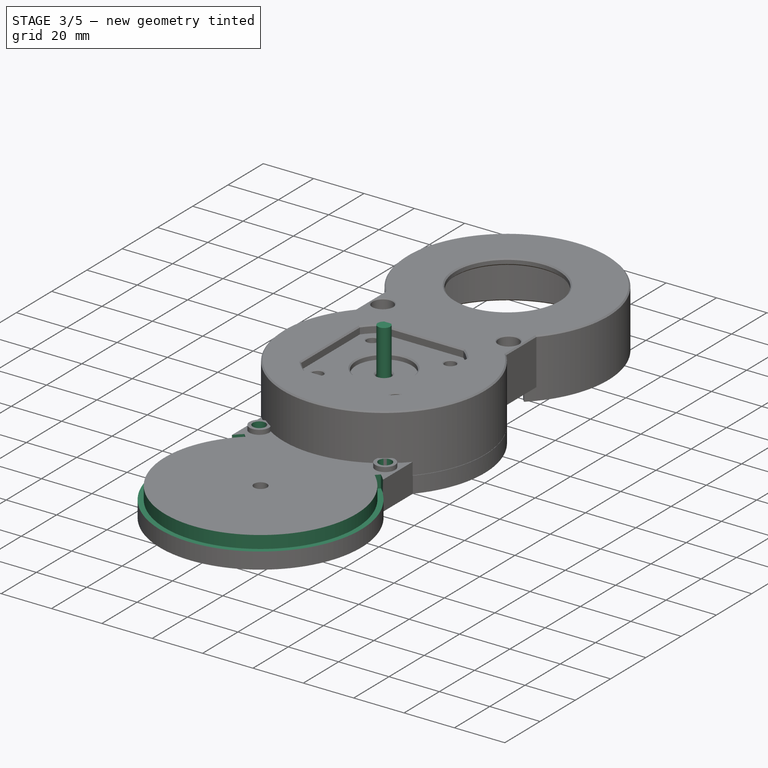
[diagram: stage 3 of 5 — iso view after this stage's code; geometry added in this stage tinted green]
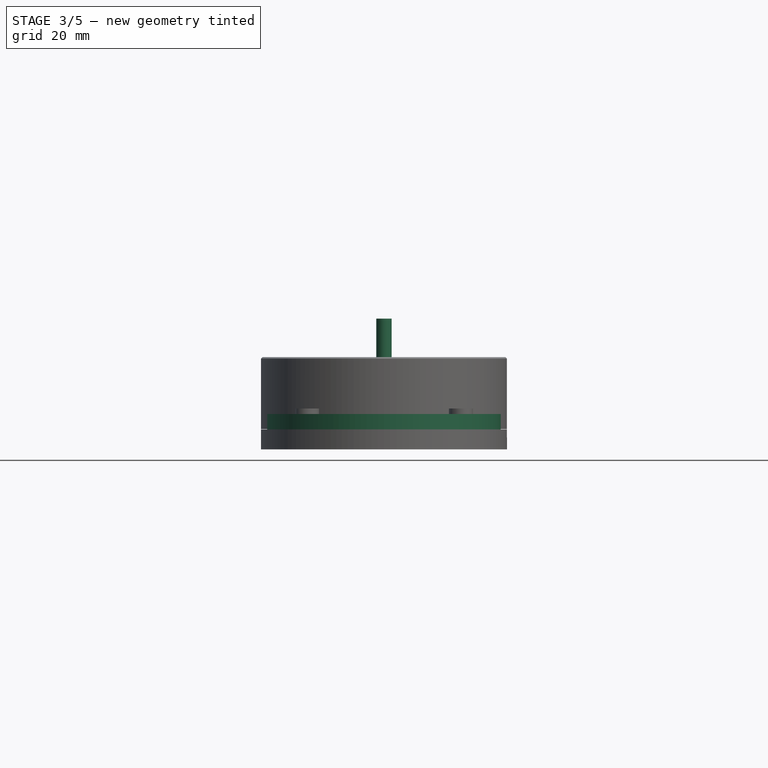
[diagram: stage 3 of 5 — front view after this stage's code; geometry added in this stage tinted green]
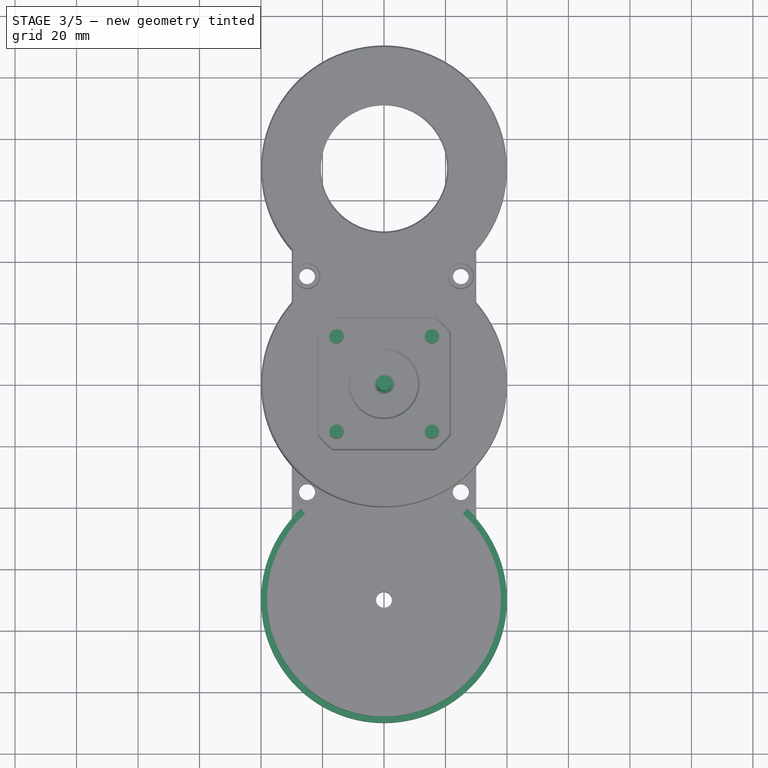
[diagram: stage 3 of 5 — top view after this stage's code; geometry added in this stage tinted green]
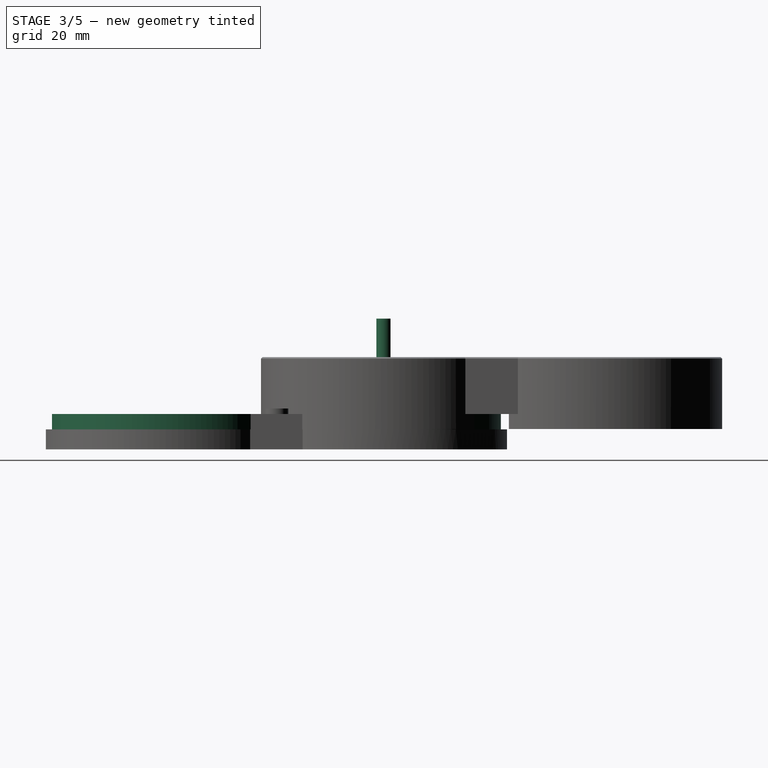
[diagram: stage 3 of 5 — right view after this stage's code; geometry added in this stage tinted green]
FEATURE [PartDesign::Body] Body001  label="handle"
  BaseFeature = -> InvoluteGear001
  Group = -> [BaseFeature,Chamfer002,Sketch006,Groove,Sketch009,Revolution002,Sketch010,Pad001,Fillet002,Sketch011,Pocket002,Chamfer003]
  Origin = -> Origin003
  Placement = pos=(0,0,12) rot=(0,0,1;0rad)
  Tip = -> Chamfer003
FEATURE [Sketcher::SketchObject] Sketch012  label="main body sketch"
  FullyConstrained = true
  MapMode = 5
  Placement = pos=(0,0,0) rot=(1,0,0;1.5708rad)
  Support = -> [XZ_Plane006]
  expr: Constraints[16] = (22 - 0.05 / 2) / 2
  expr: Constraints[22] = (5 - 0.012 / 2) / 2
  sketch-geometry (8):
    g0: LineSegment StartX=0 StartY=0 StartZ=0 EndX=26.9 EndY=0 EndZ=0
    g1: LineSegment StartX=26.9 StartY=0 StartZ=0 EndX=26.9 EndY=20.5 EndZ=0
    g2: LineSegment StartX=26.9 StartY=20.5 StartZ=0 EndX=10.9875 EndY=20.5 EndZ=0
    g3: LineSegment StartX=10.9875 StartY=20.5 StartZ=0 EndX=10.9875 EndY=22.5 EndZ=0
    g4: LineSegment StartX=10.9875 StartY=22.5 StartZ=0 EndX=2.497 EndY=22.5 EndZ=0
    g5: LineSegment StartX=2.497 StartY=22.5 StartZ=0 EndX=2.497 EndY=42.5 EndZ=0
    g6: LineSegment StartX=2.497 StartY=42.5 StartZ=0 EndX=0 EndY=42.5 EndZ=0
    g7: LineSegment StartX=0 StartY=42.5 StartZ=0 EndX=0 EndY=0 EndZ=0
  constraints (23):
    c: Coincident(g-1,g0)
    c: PointOnObject(g0,g-1)
    c: Coincident(g0,g1)
    c: Vertical(g1)
    c: Coincident(g1,g2)
    c: Horizontal(g2)
    c: Coincident(g2,g3)
    c: Coincident(g3,g4)
    c: Horizontal(g4)
    c: Coincident(g4,g5)
    c: Vertical(g5)
    c: Coincident(g5,g6)
    c: Coincident(g6,g7)
    c: Coincident(g7,g0)
    c: Vertical(g7)
    c: DistanceX(g0,g0) = 26.9
    c: DistanceX(g0,g3) = 10.9875
    c: Vertical(g3)
    c: DistanceY(g3,g3) = 2
    c: DistanceY(g1,g1) = 20.5
    c: DistanceY(g5,g5) = 20
    c: Horizontal(g6)
    c: DistanceX(g6,g6) = 2.497
FEATURE [PartDesign::Revolution] Revolution003  label="main body"
  Angle = 360
  Axis = (0,-2e-16,1)
  Base = (0,0,0)
  Placement = pos=(0,0,0) rot=(1,0,0;1.5708rad)
  Profile = -> Sketch012
  ReferenceAxis = -> Sketch012 [V_Axis]
  Refine = true
  Reversed = true
FEATURE [Sketcher::SketchObject] Sketch013  label="shaft cut sketch"
  AttachmentOffset = pos=(0,0,42.5) rot=(0,0,1;0rad)
  FullyConstrained = true
  MapMode = 5
  Placement = pos=(0,0,42.5) rot=(0,0,1;0rad)
  Support = -> [XY_Plane006]
  expr: Constraints[9] = (4.996 - (4.996 - 4.2)) / 2
  sketch-geometry (4):
    g0: LineSegment StartX=-2.5 StartY=3.1 StartZ=0 EndX=2.5 EndY=3.1 EndZ=0
    g1: LineSegment StartX=2.5 StartY=3.1 StartZ=0 EndX=2.5 EndY=2.1 EndZ=0
    g2: LineSegment StartX=2.5 StartY=2.1 StartZ=0 EndX=-2.5 EndY=2.1 EndZ=0
    g3: LineSegment StartX=-2.5 StartY=2.1 StartZ=0 EndX=-2.5 EndY=3.1 EndZ=0
  constraints (11):
    c: Coincident(g0,g1)
    c: Coincident(g1,g2)
    c: Coincident(g2,g3)
    c: Coincident(g3,g0)
    c: Horizontal(g0)
    c: Vertical(g1)
    c: Vertical(g3)
    c: DistanceX(g0,g0) = 5
    c: Symmetric(g1,g2,g-2)
    c: DistanceY(g-1,g1) = 2.1
    c: DistanceY(g1,g1) = 1
FEATURE [PartDesign::Pocket] Pocket003  label="shaft cut"
  BaseFeature = -> Revolution003
  Length = 16.5
  Length2 = 100
  Placement = pos=(0,0,0) rot=(1,0,0;1.5708rad)
  Profile = -> Sketch013
  Refine = true
  Type = 0
FEATURE [Sketcher::SketchObject] Sketch017  label="small bearing sketch"
  FullyConstrained = true
  MapMode = 5
  Placement = pos=(0,0,0) rot=(0.57735,0.57735,0.57735;2.0944rad)
  Support = -> [YZ_Plane010]
  sketch-geometry (4):
    g0: LineSegment StartX=4 StartY=23 StartZ=0 EndX=11 EndY=23 EndZ=0
    g1: LineSegment StartX=11 StartY=23 StartZ=0 EndX=11 EndY=16 EndZ=0
    g2: LineSegment StartX=11 StartY=16 StartZ=0 EndX=4 EndY=16 EndZ=0
    g3: LineSegment StartX=4 StartY=16 StartZ=0 EndX=4 EndY=23 EndZ=0
  constraints (12):
    c: Coincident(g0,g1)
    c: Coincident(g1,g2)
    c: Coincident(g2,g3)
    c: Coincident(g3,g0)
    c: Horizontal(g0)
    c: Horizontal(g2)
    c: Vertical(g1)
    c: Vertical(g3)
    c: DistanceX(g1) = 11
    c: DistanceX(g2) = 4
    c: DistanceY(g1,g1) = 7
    c: DistanceY(g-1,g2) = 16
FEATURE [PartDesign::Revolution] Revolution004
  Angle = 360
  Axis = (-2e-16,3e-16,1)
  Base = (0,0,0)
  Placement = pos=(0,0,0) rot=(0.57735,0.57735,0.57735;2.0944rad)
  Profile = -> Sketch017
  ReferenceAxis = -> Sketch017 [V_Axis]
  Refine = true
  Reversed = true
FEATURE [Sketcher::SketchObject] Sketch033  label="index screw hole"
  FullyConstrained = true
  MapMode = 5
  Support = -> [XY_Plane001]
  sketch-geometry (2):
    g0: Circle CenterX=-25 CenterY=-35 CenterZ=0 NormalX=0 NormalY=0 NormalZ=1 AngleXU=0 Radius=2.6
    g1: Circle CenterX=25 CenterY=-35 CenterZ=0 NormalX=0 NormalY=0 NormalZ=1 AngleXU=0 Radius=2.6
  constraints (5):
    c: DistanceX(g0,g1) = 50
    c: DistanceY(g1,g-1) = 35
    c: Symmetric(g1,g0,g-2)
    c: Radius(g1) = 2.6
    c: Equal(g1,g0)
FEATURE [PartDesign::Pocket] Pocket  label="index screw hole"
  BaseFeature = -> Pad006
  Length = 14
  Length2 = 100
  Placement = pos=(0,0,0) rot=(1,0,0;1.5708rad)
  Profile = -> Sketch033
  Refine = true
  Reversed = true
  Type = 0
FEATURE [PartDesign::Pocket] Pocket011  label="index ring main block"
  BaseFeature = -> Pocket
  Length = 5
  Length2 = 100
  Placement = pos=(0,0,0) rot=(1,0,0;1.5708rad)
  Profile = -> Sketch031
  Refine = true
  Reversed = true
  Type = 0
FEATURE [Sketcher::SketchObject] Sketch034  label="index thread insert"
  FullyConstrained = true
  MapMode = 5
  Support = -> [XY_Plane001]
  sketch-geometry (2):
    g0: Circle CenterX=-25 CenterY=-35 CenterZ=0 NormalX=0 NormalY=0 NormalZ=1 AngleXU=0 Radius=3.15
    g1: Circle CenterX=25 CenterY=-35 CenterZ=0 NormalX=0 NormalY=0 NormalZ=1 AngleXU=0 Radius=3.15
  constraints (5):
    c: DistanceX(g0,g1) = 50
    c: DistanceY(g1,g-1) = 35
    c: Symmetric(g1,g0,g-2)
    c: Radius(g1) = 3.15
    c: Equal(g1,g0)
FEATURE [PartDesign::Pocket] Pocket012  label="index thread insert"
  BaseFeature = -> Pocket011
  Length = 7.8
  Length2 = 100
  Placement = pos=(0,0,0) rot=(1,0,0;1.5708rad)
  Profile = -> Sketch034
  Refine = true
  Reversed = true
  Type = 0
FEATURE [Sketcher::SketchObject] Sketch035  label="lock cut"
  FullyConstrained = true
  MapMode = 5
  Support = -> [XY_Plane001]
  sketch-geometry (4):
    g0: LineSegment StartX=-6 StartY=-7 StartZ=0 EndX=-6 EndY=-20 EndZ=0
    g1: LineSegment StartX=6 StartY=-7 StartZ=0 EndX=6 EndY=-20 EndZ=0
    g2: ArcOfCircle CenterX=-3e-16 CenterY=-20 CenterZ=0 NormalX=0 NormalY=0 NormalZ=1 AngleXU=0 Radius=6 StartAngle=3.14159 EndAngle=6.28319
    g3: LineSegment StartX=-6 StartY=-7 StartZ=0 EndX=6 EndY=-7 EndZ=0
  constraints (12):
    c: Vertical(g0)
    c: Vertical(g1)
    c: Symmetric(g1,g0,g-2)
    c: Equal(g1,g0)
    c: Coincident(g2,g1)
    c: Coincident(g2,g0)
    c: DistanceX(g0,g1) = 12
    c: DistanceY(g2,g0) = 0
    c: Coincident(g3,g0)
    c: Coincident(g3,g1)
    c: DistanceY(g1,g-1) = 7
    c: DistanceY(g2,g-1) = 20
FEATURE [PartDesign::Pocket] Pocket013  label="lock cut"
  BaseFeature = -> Pocket012
  Length = 16
  Length2 = 100
  Placement = pos=(0,0,0) rot=(1,0,0;1.5708rad)
  Profile = -> Sketch035
  Refine = true
  Reversed = true
  Type = 0
FEATURE [Sketcher::SketchObject] Sketch036  label="mount screw holes sketch"
  FullyConstrained = true
  MapMode = 5
  Support = -> [XY_Plane001]
  sketch-geometry (2):
    g0: Circle CenterX=-19 CenterY=-6 CenterZ=0 NormalX=0 NormalY=0 NormalZ=1 AngleXU=0 Radius=2
    g1: Circle CenterX=19 CenterY=-6 CenterZ=0 NormalX=0 NormalY=0 NormalZ=1 AngleXU=0 Radius=2
  constraints (5):
    c: DistanceX(g0,g1) = 38
    c: DistanceY(g0,g-1) = 6
    c: Radius(g1) = 2
    c: Equal(g1,g0)
    c: Symmetric(g1,g0,g-2)
FEATURE [PartDesign::Pocket] Pocket014  label="mount screw holes sketch"
  BaseFeature = -> Pocket013
  Length = 16
  Length2 = 100
  Placement = pos=(0,0,0) rot=(1,0,0;1.5708rad)
  Profile = -> Sketch036
  Refine = true
  Reversed = true
  Type = 0
FEATURE [Sketcher::SketchObject] Sketch037  label="mount screw heads sketch"
  AttachmentOffset = pos=(0,0,4) rot=(0,0,1;0rad)
  FullyConstrained = true
  MapMode = 5
  Placement = pos=(0,0,4) rot=(0,0,1;0rad)
  Support = -> [XY_Plane001]
  sketch-geometry (2):
    g0: Circle CenterX=-19 CenterY=-6 CenterZ=0 NormalX=0 NormalY=0 NormalZ=1 AngleXU=0 Radius=4.2
    g1: Circle CenterX=19 CenterY=-6 CenterZ=0 NormalX=0 NormalY=0 NormalZ=1 AngleXU=0 Radius=4.2
  constraints (5):
    c: DistanceX(g0,g1) = 38
    c: DistanceY(g0,g-1) = 6
    c: Equal(g1,g0)
    c: Symmetric(g1,g0,g-2)
    c: Radius(g0) = 4.2
FEATURE [PartDesign::Pocket] Pocket015
  BaseFeature = -> Pocket014
  Length = 13
  Length2 = 100
  Placement = pos=(0,0,0) rot=(1,0,0;1.5708rad)
  Profile = -> Sketch037
  Refine = true
  Reversed = true
  Type = 0
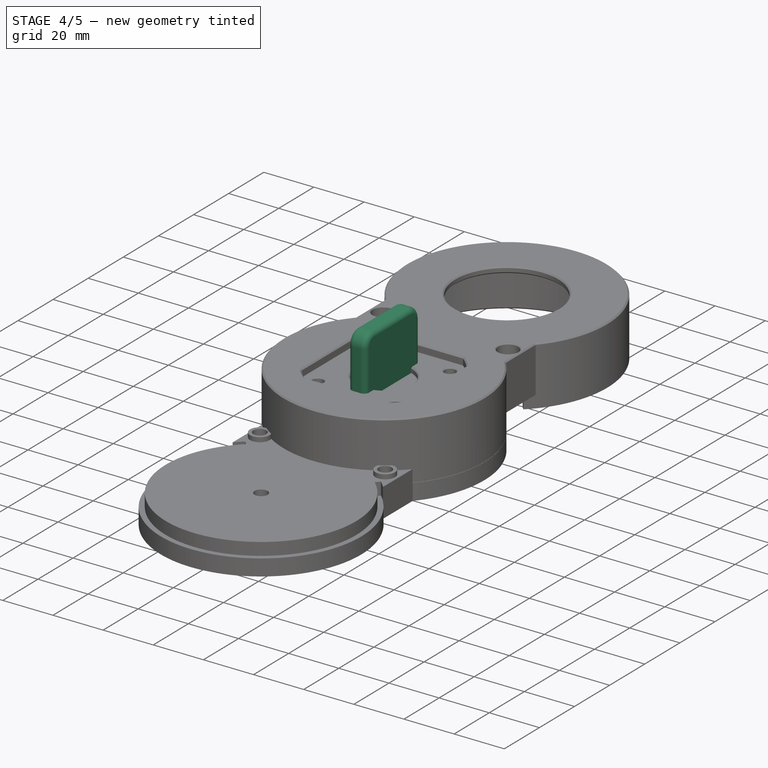
[diagram: stage 4 of 5 — iso view after this stage's code; geometry added in this stage tinted green]
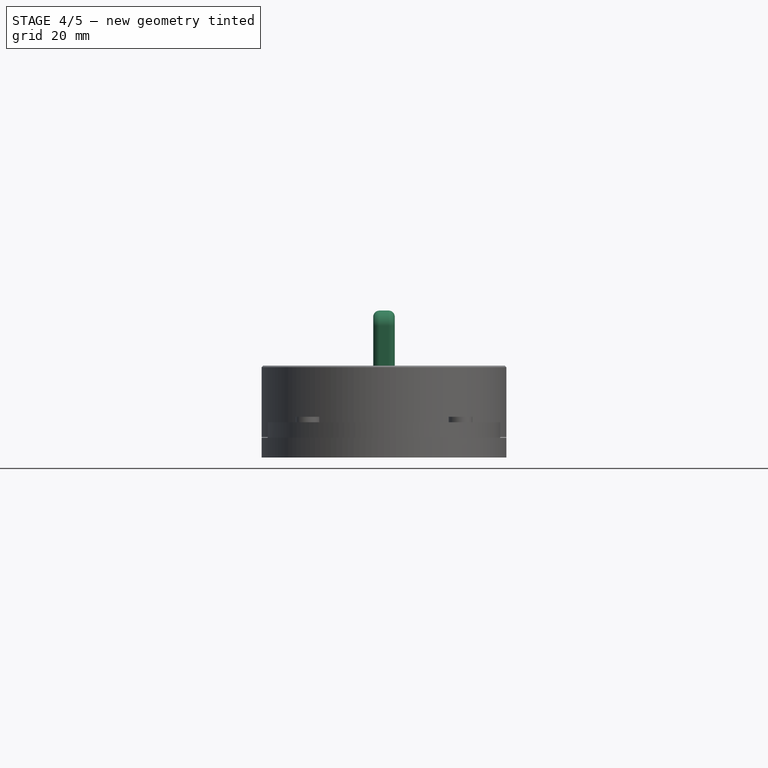
[diagram: stage 4 of 5 — front view after this stage's code; geometry added in this stage tinted green]
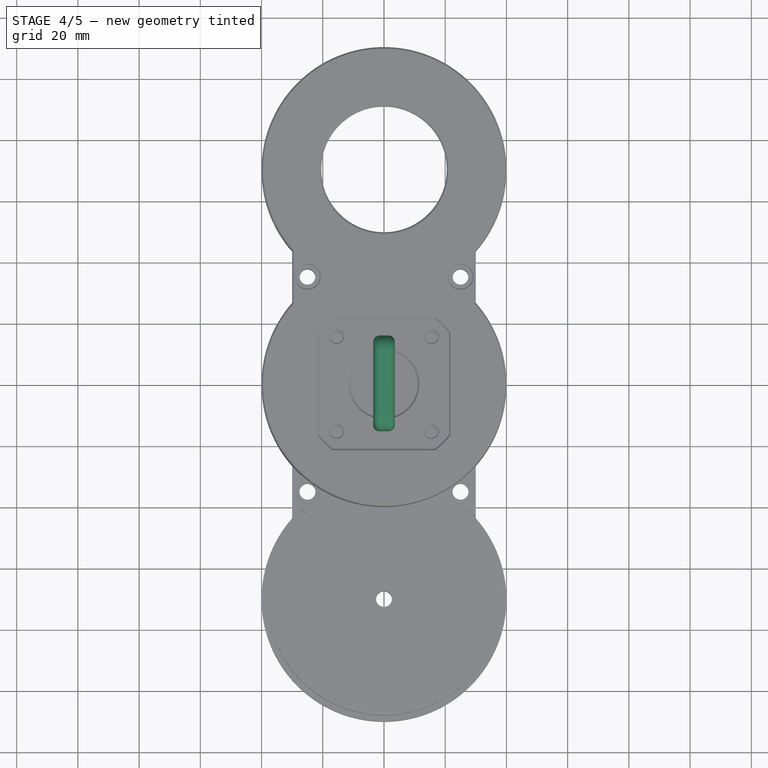
[diagram: stage 4 of 5 — top view after this stage's code; geometry added in this stage tinted green]
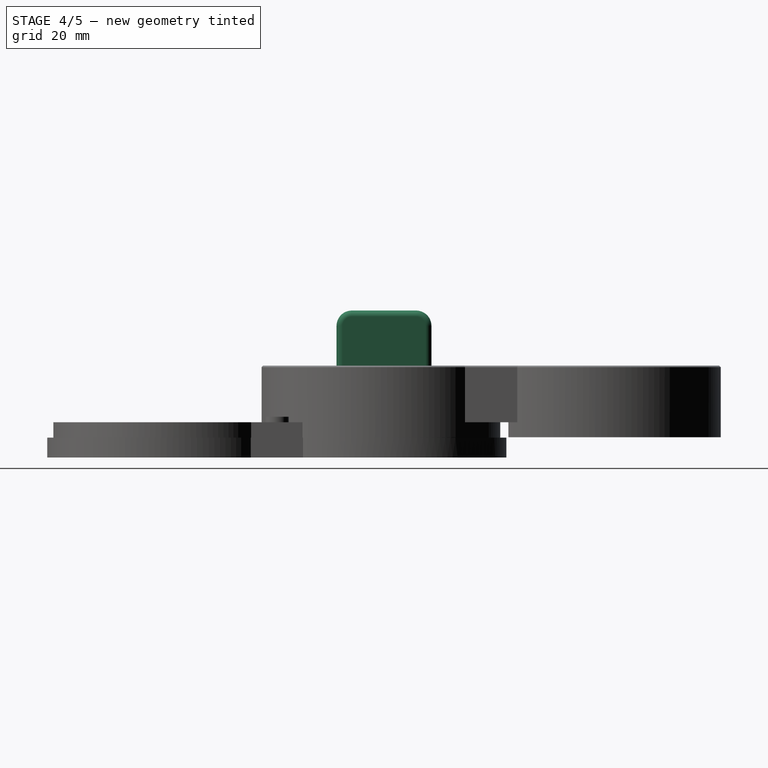
[diagram: stage 4 of 5 — right view after this stage's code; geometry added in this stage tinted green]
FEATURE [PartDesign::FeatureBase] BaseFeature
  BaseFeature = -> InvoluteGear001
FEATURE [PartDesign::Chamfer] Chamfer002  label="top gear chamfer"
  Angle = 45
  Base = -> BaseFeature [Face212,Face211]
  BaseFeature = -> BaseFeature
  ChamferType = 0
  FlipDirection = false
  Refine = true
  Size = 0.75
  Size2 = 1
  SupportTransform = false
FEATURE [Sketcher::SketchObject] Sketch006  label="top gear cut"
  FullyConstrained = true
  MapMode = 5
  Placement = pos=(0,0,0) rot=(0.57735,0.57735,0.57735;2.0944rad)
  Support = -> [YZ_Plane003]
  sketch-geometry (10):
    g0: LineSegment StartX=-31 StartY=0 StartZ=0 EndX=-30.5 EndY=0.5 EndZ=0
    g1: LineSegment StartX=-30.5 StartY=0.5 StartZ=0 EndX=-30.5 EndY=4.5 EndZ=0
    g2: LineSegment StartX=-30.5 StartY=4.5 StartZ=0 EndX=-21.5 EndY=4.5 EndZ=0
    g3: LineSegment StartX=-21.5 StartY=4.5 StartZ=0 EndX=-21 EndY=5 EndZ=0
    g4: LineSegment StartX=-21 StartY=5 StartZ=0 EndX=-21 EndY=11.5 EndZ=0
    g5: LineSegment StartX=-21 StartY=11.5 StartZ=0 EndX=-19 EndY=11.5 EndZ=0
    g6: LineSegment StartX=-19 StartY=11.5 StartZ=0 EndX=-19 EndY=12 EndZ=0
    g7: LineSegment StartX=0 StartY=12 StartZ=0 EndX=0 EndY=0 EndZ=0
    g8: LineSegment StartX=0 StartY=0 StartZ=0 EndX=-31 EndY=0 EndZ=0
    g9: LineSegment StartX=-19 StartY=12 StartZ=0 EndX=0 EndY=12 EndZ=0
  constraints (29):
    c: Coincident(g0,g1)
    c: Vertical(g1)
    c: Coincident(g1,g2)
    c: Horizontal(g2)
    c: Coincident(g2,g3)
    c: Coincident(g3,g4)
    c: Vertical(g4)
    c: Coincident(g4,g5)
    c: Horizontal(g5)
    c: Coincident(g5,g6)
    c: Vertical(g6)
    c: Coincident(g7,g-1)
    c: Coincident(g7,g8)
    c: Coincident(g8,g0)
    c: Horizontal(g8)
    c: Vertical(g7)
    c: DistanceX(g6,g7) = 19
    c: DistanceY(g1) = 4.5
    c: DistanceX(g3,g7) = 21
    c: Angle(g3,g2) = 2.35619
    c: Angle(g8,g0) = 0.785398
    c: DistanceX(g1,g7) = 30.5
    c: DistanceY(g7,g5) = 11.5
    c: DistanceY(g2,g3) = 0.5
    c: DistanceX(g0,g0) = 0.5
    c: Coincident(g9,g6)
    c: Horizontal(g9)
    c: DistanceY(g9) = 12
    c: Coincident(g7,g9)
FEATURE [PartDesign::Groove] Groove
  Angle = 360
  Axis = (-2e-16,3e-16,1)
  Base = (0,0,0)
  BaseFeature = -> Chamfer002
  Profile = -> Sketch006
  ReferenceAxis = -> Sketch006 [V_Axis]
  Refine = true
  Reversed = true
FEATURE [Sketcher::SketchObject] Sketch009  label="handle cup sketch"
  FullyConstrained = true
  MapMode = 5
  Placement = pos=(0,0,0) rot=(0.57735,0.57735,0.57735;2.0944rad)
  Support = -> [YZ_Plane003]
  sketch-geometry (7):
    g0: LineSegment StartX=0 StartY=15 StartZ=0 EndX=0 EndY=23 EndZ=0
    g1: LineSegment StartX=0 StartY=23 StartZ=0 EndX=-16 EndY=23 EndZ=0
    g2: LineSegment StartX=-18 StartY=21 StartZ=0 EndX=-18 EndY=20 EndZ=0
    g3: LineSegment StartX=-20 StartY=15 StartZ=0 EndX=0 EndY=15 EndZ=0
    g4: ArcOfCircle CenterX=-20 CenterY=20 CenterZ=0 NormalX=0 NormalY=0 NormalZ=1 AngleXU=0 Radius=2 StartAngle=4.71239 EndAngle=6.28319
    g5: ArcOfCircle CenterX=-16 CenterY=21 CenterZ=0 NormalX=0 NormalY=0 NormalZ=1 AngleXU=0 Radius=2 StartAngle=1.5708 EndAngle=3.14159
    g6: LineSegment StartX=-20 StartY=18 StartZ=0 EndX=-20 EndY=15 EndZ=0
  constraints (20):
    c: PointOnObject(g0,g-2)
    c: Coincident(g1,g0)
    c: Horizontal(g1)
    c: Vertical(g2)
    c: Coincident(g3,g0)
    c: Tangent(g2,g4) = 1.5708
    c: Radius(g4) = 2
    c: Horizontal(g3)
    c: Vertical(g0)
    c: Tangent(g1,g5) = -1.5708
    c: Tangent(g2,g5) = -1.5708
    c: Radius(g5) = 2
    c: Coincident(g6,g4)
    c: Coincident(g6,g3)
    c: Vertical(g6)
    c: DistanceY(g6,g6) = 3
    c: DistanceX(g4,g-1) = 20
    c: DistanceX(g2,g-1) = 18
    c: DistanceY(g0,g0) = 8
    c: DistanceY(g0) = 15
FEATURE [PartDesign::Revolution] Revolution002  label="handle cup"
  Angle = 360
  Axis = (-2e-16,3e-16,1)
  Base = (0,0,0)
  BaseFeature = -> Groove
  Profile = -> Sketch009
  ReferenceAxis = -> Sketch009 [V_Axis]
  Refine = true
FEATURE [Sketcher::SketchObject] Sketch010  label="handle knob sketch"
  FullyConstrained = true
  MapMode = 5
  Placement = pos=(0,0,0) rot=(0.57735,0.57735,0.57735;2.0944rad)
  Support = -> [YZ_Plane003]
  sketch-geometry (6):
    g0: LineSegment StartX=-15.5 StartY=23 StartZ=0 EndX=-15.5 EndY=43 EndZ=0
    g1: LineSegment StartX=-10.5 StartY=48 StartZ=0 EndX=10.5 EndY=48 EndZ=0
    g2: LineSegment StartX=15.5 StartY=43 StartZ=0 EndX=15.5 EndY=23 EndZ=0
    g3: ArcOfCircle CenterX=-10.5 CenterY=43 CenterZ=0 NormalX=0 NormalY=0 NormalZ=1 AngleXU=0 Radius=5 StartAngle=1.5708 EndAngle=3.14159
    g4: ArcOfCircle CenterX=10.5 CenterY=43 CenterZ=0 NormalX=0 NormalY=0 NormalZ=1 AngleXU=0 Radius=5 StartAngle=3e-16 EndAngle=1.5708
    g5: LineSegment StartX=-15.5 StartY=23 StartZ=0 EndX=15.5 EndY=23 EndZ=0
  constraints (14):
    c: Vertical(g0)
    c: Symmetric(g2,g0,g-2)
    c: Tangent(g0,g3) = 1.5708
    c: Tangent(g1,g3) = 1.5708
    c: Tangent(g1,g4) = 1.5708
    c: Tangent(g2,g4) = 1.5708
    c: DistanceY(g2,g1) = 25
    c: Symmetric(g4,g3,g-2)
    c: Horizontal(g1)
    c: Radius(g3) = 5
    c: Coincident(g5,g0)
    c: Coincident(g5,g2)
    c: DistanceX(g0,g2) = 31
    c: DistanceY(g2) = 23
FEATURE [PartDesign::Pad] Pad001  label="handle knob base"
  BaseFeature = -> Revolution002
  Direction = (1,1,1)
  Length = 7
  Length2 = 100
  Midplane = true
  Profile = -> Sketch010
  Refine = true
  Type = 0
FEATURE [PartDesign::Fillet] Fillet002
  Base = -> Pad001 [Edge1502,Edge1503,Edge1504,Edge1505,Edge1501,Edge1496,Edge1495,Edge1497,Edge1498,Edge1499]
  BaseFeature = -> Pad001
  Radius = 2
  Refine = true
  SupportTransform = false
FEATURE [Sketcher::SketchObject] Sketch011  label="key cut sketch"
  FullyConstrained = true
  MapMode = 5
  Placement = pos=(0,0,0) rot=(0.57735,0.57735,0.57735;2.0944rad)
  Support = -> [YZ_Plane003]
  sketch-geometry (4):
    g0: LineSegment StartX=-13 StartY=9 StartZ=0 EndX=13 EndY=9 EndZ=0
    g1: LineSegment StartX=13 StartY=9 StartZ=0 EndX=13 EndY=34 EndZ=0
    g2: LineSegment StartX=13 StartY=34 StartZ=0 EndX=-13 EndY=34 EndZ=0
    g3: LineSegment StartX=-13 StartY=34 StartZ=0 EndX=-13 EndY=9 EndZ=0
  constraints (11):
    c: Coincident(g0,g1)
    c: Coincident(g1,g2)
    c: Coincident(g2,g3)
    c: Coincident(g3,g0)
    c: Horizontal(g2)
    c: Vertical(g1)
    c: Vertical(g3)
    c: DistanceX(g2,g2) = 26
    c: DistanceY(g1,g1) = 25
    c: Symmetric(g0,g0,g-2)
    c: DistanceY(g0) = 9
FEATURE [PartDesign::Pocket] Pocket002  label="key cut"
  BaseFeature = -> Fillet002
  Length = 2.6
  Length2 = 100
  Midplane = true
  Profile = -> Sketch011
  Refine = true
  Type = 0
FEATURE [Sketcher::SketchObject] Sketch014  label="square cut sketch"
  FullyConstrained = true
  MapMode = 5
  Support = -> [XY_Plane006]
  sketch-geometry (5):
    g0: LineSegment StartX=-21.15 StartY=21.15 StartZ=0 EndX=21.15 EndY=21.15 EndZ=0
    g1: LineSegment StartX=21.15 StartY=21.15 StartZ=0 EndX=21.15 EndY=-21.15 EndZ=0
    g2: LineSegment StartX=21.15 StartY=-21.15 StartZ=0 EndX=-21.15 EndY=-21.15 EndZ=0
    g3: LineSegment StartX=-21.15 StartY=-21.15 StartZ=0 EndX=-21.15 EndY=21.15 EndZ=0
    g4: Circle CenterX=0 CenterY=0 CenterZ=0 NormalX=0 NormalY=0 NormalZ=1 AngleXU=0 Radius=55
  constraints (12):
    c: Coincident(g0,g1)
    c: Coincident(g1,g2)
    c: Coincident(g2,g3)
    c: Coincident(g3,g0)
    c: Horizontal(g0)
    c: Vertical(g3)
    c: DistanceX(g2,g2) = 42.3
    c: DistanceY(g1,g1) = 42.3
    c: Symmetric(g0,g1,g-1)
    c: Symmetric(g1,g2,g-2)
    c: Coincident(g4,g-1)
    c: Radius(g4) = 55
FEATURE [PartDesign::Pocket] Pocket004  label="square cut"
  BaseFeature = -> Pocket003
  Length = 0
  Length2 = 0
  Midplane = true
  Placement = pos=(0,0,0) rot=(1,0,0;1.5708rad)
  Profile = -> Sketch014
  Refine = true
  Type = 1
FEATURE [Sketcher::SketchObject] Sketch015  label="mount screw cut sketch"
  FullyConstrained = true
  MapMode = 5
  Placement = pos=(0,0,20.5) rot=(0,0,1;3.14159rad)
  Support = -> [Pocket004]
  sketch-geometry (8):
    g0: LineSegment StartX=-15.5 StartY=15.5 StartZ=0 EndX=15.5 EndY=15.5 EndZ=0
    g1: LineSegment StartX=15.5 StartY=15.5 StartZ=0 EndX=15.5 EndY=-15.5 EndZ=0
    g2: LineSegment StartX=15.5 StartY=-15.5 StartZ=0 EndX=-15.5 EndY=-15.5 EndZ=0
    g3: LineSegment StartX=-15.5 StartY=-15.5 StartZ=0 EndX=-15.5 EndY=15.5 EndZ=0
    g4: Circle CenterX=-15.5 CenterY=15.5 CenterZ=0 NormalX=0 NormalY=0 NormalZ=1 AngleXU=0 Radius=1.75
    g5: Circle CenterX=15.5 CenterY=15.5 CenterZ=0 NormalX=0 NormalY=0 NormalZ=1 AngleXU=0 Radius=1.75
    g6: Circle CenterX=15.5 CenterY=-15.5 CenterZ=0 NormalX=0 NormalY=0 NormalZ=1 AngleXU=0 Radius=1.75
    g7: Circle CenterX=-15.5 CenterY=-15.5 CenterZ=0 NormalX=0 NormalY=0 NormalZ=1 AngleXU=0 Radius=1.75
  constraints (18):
    c: Coincident(g0,g1)
    c: Coincident(g1,g2)
    c: Coincident(g2,g3)
    c: Coincident(g3,g0)
    c: Horizontal(g2)
    c: Vertical(g3)
    c: DistanceX(g0,g0) = 31
    c: DistanceY(g1,g1) = 31
    c: Symmetric(g0,g0,g-2)
    c: Symmetric(g0,g1,g-1)
    c: Coincident(g4,g0)
    c: Coincident(g5,g0)
    c: Coincident(g6,g1)
    c: Coincident(g7,g2)
    c: Equal(g7,g4)
    c: Equal(g4,g5)
    c: Equal(g5,g6)
    c: Radius(g4) = 1.75
FEATURE [PartDesign::Pocket] Pocket005  label="mount screw cut"
  BaseFeature = -> Pocket004
  Length = 5
  Length2 = 100
  Placement = pos=(0,0,0) rot=(1,0,0;1.5708rad)
  Profile = -> Sketch015
  Refine = true
  Type = 0
FEATURE [Sketcher::SketchObject] Sketch004  label="cable channel sketch"
  AttachmentOffset = pos=(0,0,2.3) rot=(0,0,1;0rad)
  FullyConstrained = true
  MapMode = 5
  Placement = pos=(0,0,2.3) rot=(0,0,1;0rad)
  Support = -> [XY_Plane006]
  sketch-geometry (4):
    g0: LineSegment StartX=-4 StartY=-21.15 StartZ=0 EndX=4 EndY=-21.15 EndZ=0
    g1: LineSegment StartX=4 StartY=-21.15 StartZ=0 EndX=4 EndY=-29.15 EndZ=0
    g2: LineSegment StartX=4 StartY=-29.15 StartZ=0 EndX=-4 EndY=-29.15 EndZ=0
    g3: LineSegment StartX=-4 StartY=-29.15 StartZ=0 EndX=-4 EndY=-21.15 EndZ=0
  constraints (11):
    c: Coincident(g0,g1)
    c: Coincident(g1,g2)
    c: Coincident(g2,g3)
    c: Coincident(g3,g0)
    c: Horizontal(g0)
    c: Vertical(g1)
    c: Vertical(g3)
    c: DistanceX(g2,g2) = 8
    c: DistanceY(g0,g-1) = 21.15
    c: DistanceY(g3,g3) = 8
    c: Symmetric(g1,g2,g-2)
FEATURE [PartDesign::Pad] Pad003  label="cable channel"
  BaseFeature = -> Pocket005
  Direction = (1,1,1)
  Length = 5
  Length2 = 100
  Placement = pos=(0,0,0) rot=(1,0,0;1.5708rad)
  Profile = -> Sketch004
  Refine = true
  Type = 0
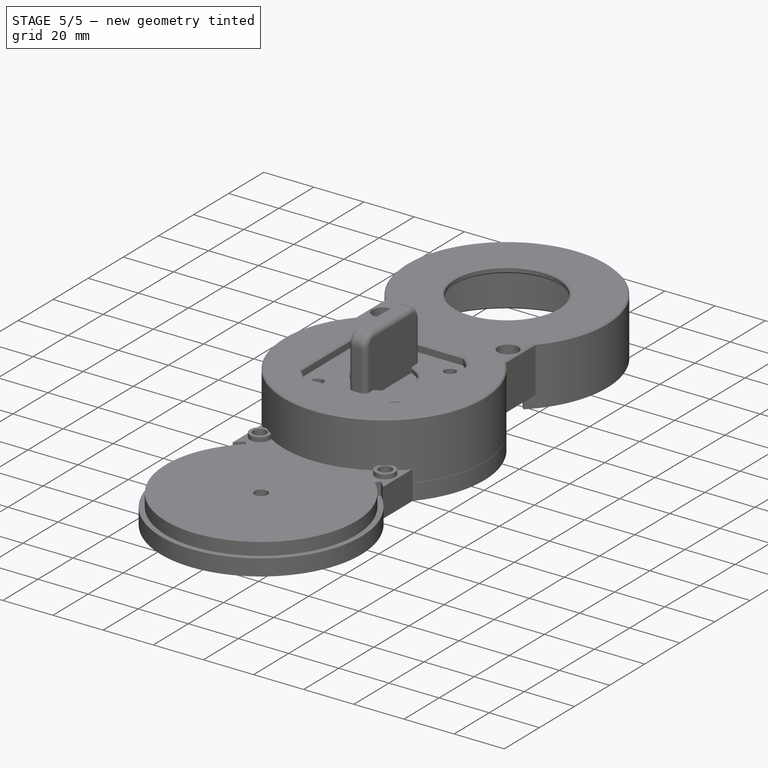
[diagram: stage 5 of 5 — iso view after this stage's code; geometry added in this stage tinted green]
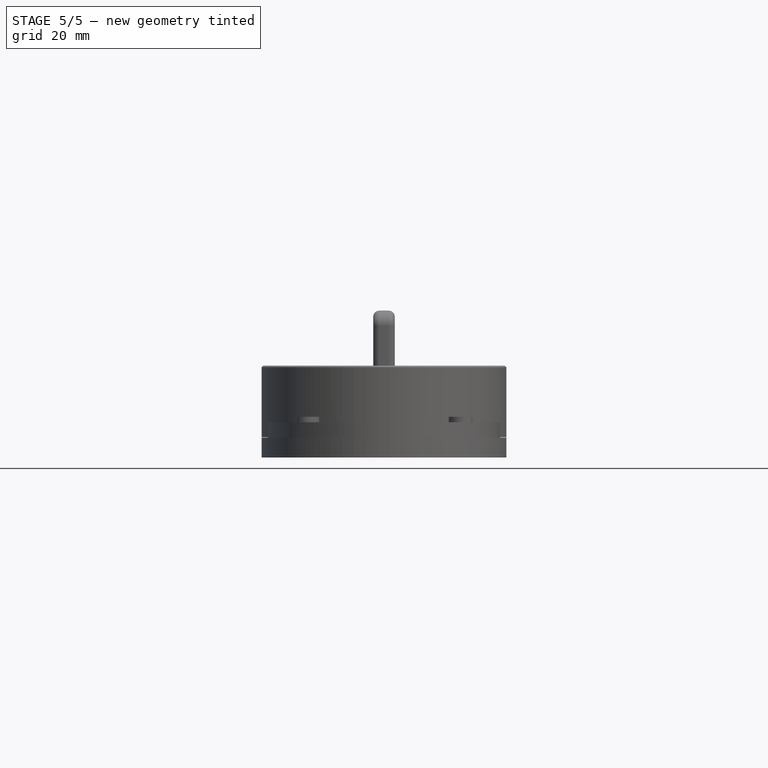
[diagram: stage 5 of 5 — front view after this stage's code; geometry added in this stage tinted green]
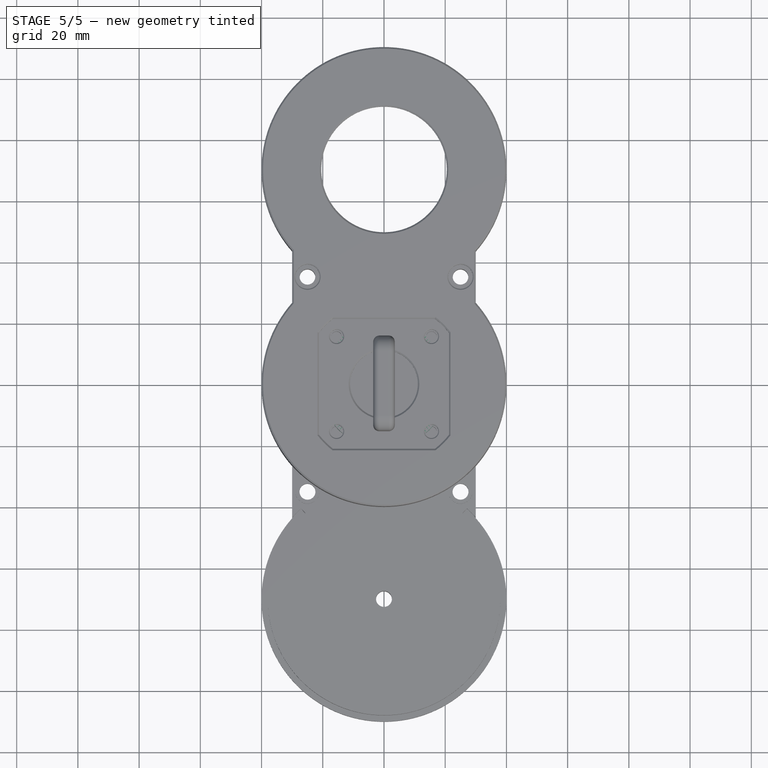
[diagram: stage 5 of 5 — top view after this stage's code; geometry added in this stage tinted green]
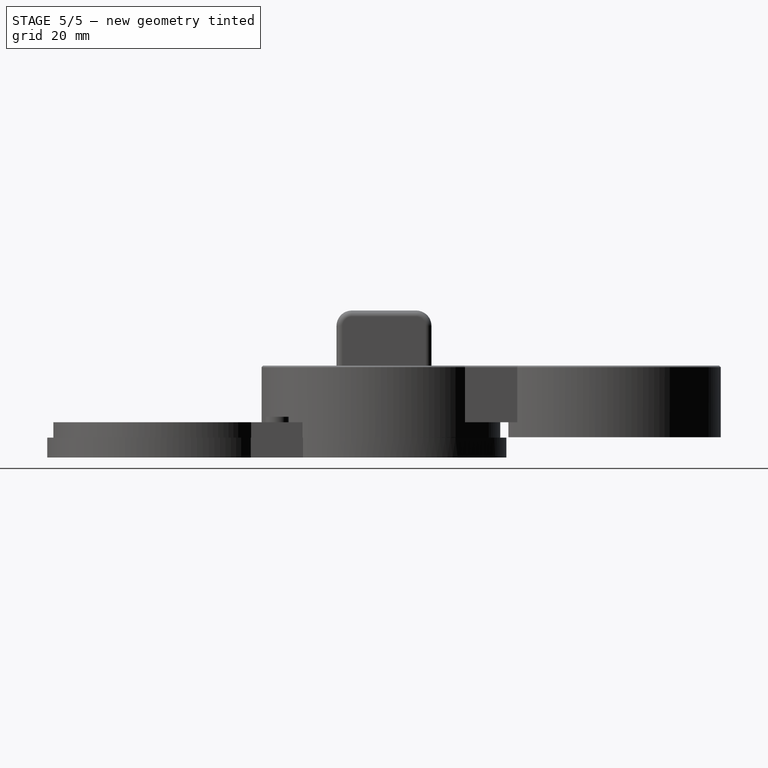
[diagram: stage 5 of 5 — right view after this stage's code; geometry added in this stage tinted green]
FEATURE [Part::Cylinder] Cylinder006  label="lock cut top001"
  Angle = 360
  AttacherType = Attacher::AttachEngine3D
  Height = 14
  Placement = pos=(0,8,0) rot=(0,0,1;0rad)
  Radius = 8.5
FEATURE [Part::Cylinder] Cylinder007  label="lock cut bottom001"
  Angle = 360
  AttacherType = Attacher::AttachEngine3D
  Height = 14
  Placement = pos=(0,-11,0) rot=(0,0,1;0rad)
  Radius = 5
FEATURE [Part::Box] Box006  label="lock cut middle001"
  AttacherType = Attacher::AttachEngine3D
  Height = 14
  Length = 10
  Placement = pos=(-5,-11,0) rot=(0,0,1;0rad)
  Width = 13
FEATURE [Part::MultiFuse] Fusion004  label="lock"
  Placement = pos=(0,-8,0) rot=(0,0,1;0rad)
  Refine = true
  Shapes = -> [Box006,Cylinder007,Cylinder006]
FEATURE [Part::Cylinder] Cylinder012  label="bearing outer"
  Angle = 360
  AttacherType = Attacher::AttachEngine3D
  Height = 7
  Radius = 21
FEATURE [Part::Cylinder] Cylinder013  label="bearing inner"
  Angle = 360
  AttacherType = Attacher::AttachEngine3D
  Height = 7
  Radius = 15
FEATURE [Part::Cut] Cut001  label="bearing"
  Base = -> Cylinder012
  Placement = pos=(0,0,16.5) rot=(0,0,1;0rad)
  Refine = true
  Tool = -> Cylinder013
FEATURE [Part::Box] Box009  label="key"
  AttacherType = Attacher::AttachEngine3D
  Height = 23.6
  Length = 2.5
  Placement = pos=(-1.25,-13,21.2) rot=(0,0,1;0rad)
  Width = 26
FEATURE [PartDesign::Chamfer] Chamfer003  label="key cut chamfer"
  Angle = 45
  Base = -> Pocket002 [Edge1535,Edge1534,Edge1536,Edge1533]
  BaseFeature = -> Pocket002
  ChamferType = 0
  FlipDirection = false
  Refine = true
  Size = 1
  Size2 = 1
  SupportTransform = false
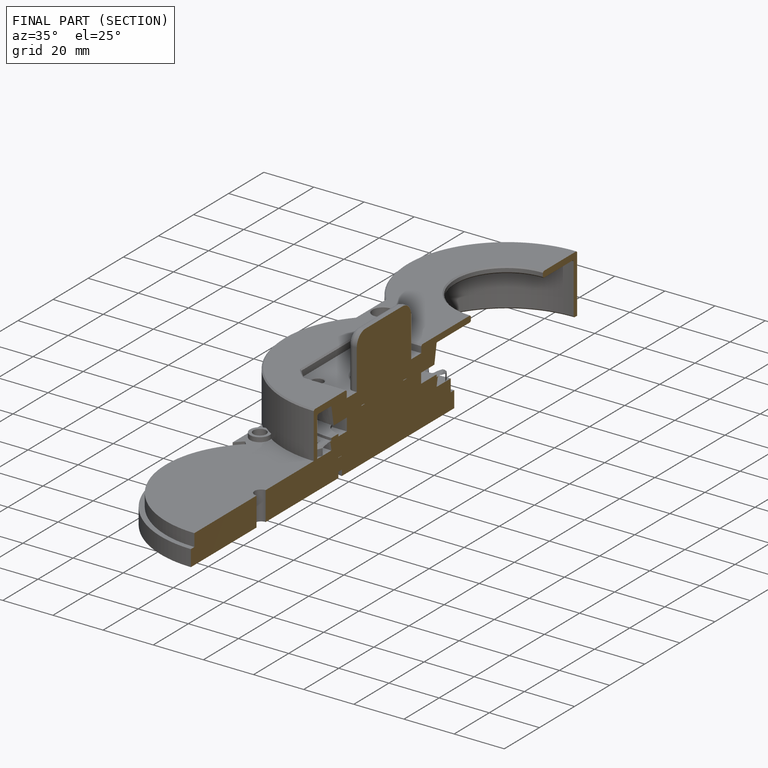
[diagram: finished part — half-section view (interior)]
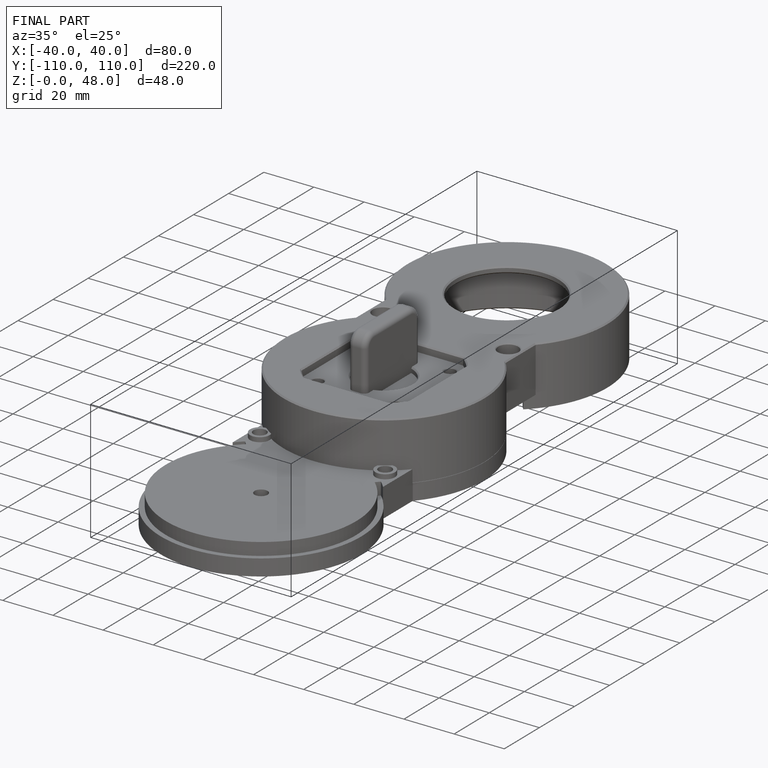
[diagram: finished part — iso view with bounding-box wireframe]
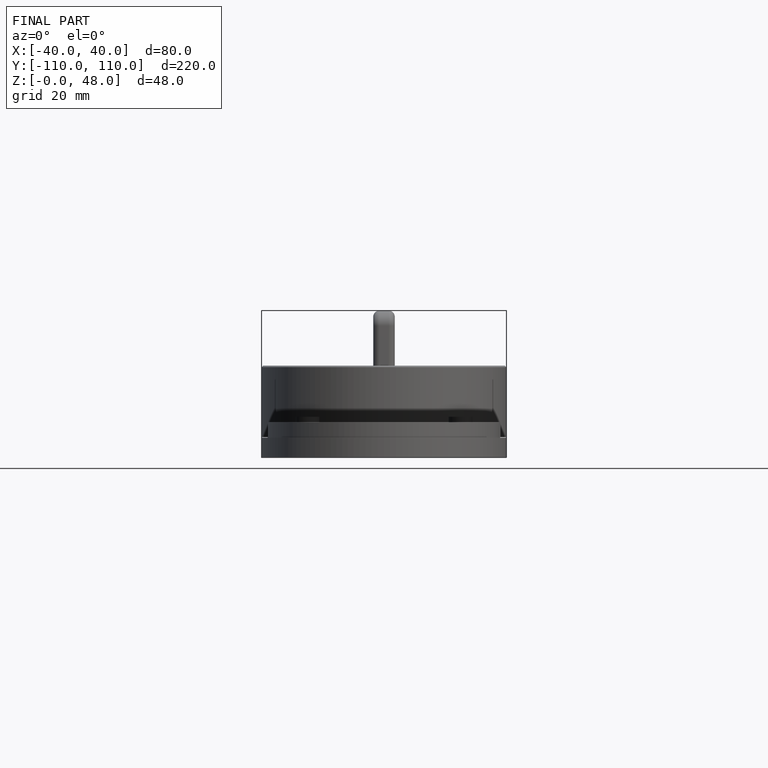
[diagram: finished part — front view with bounding-box wireframe]
